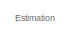
[diagram: root canvas - part 1/15, top center region]
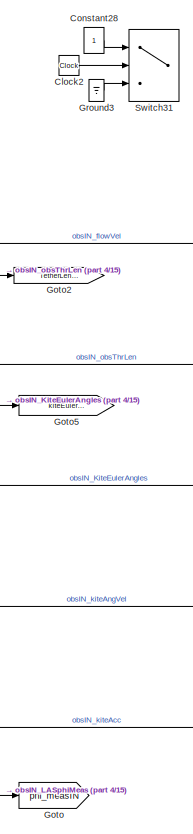
[diagram: root canvas - part 2/15, top right region]
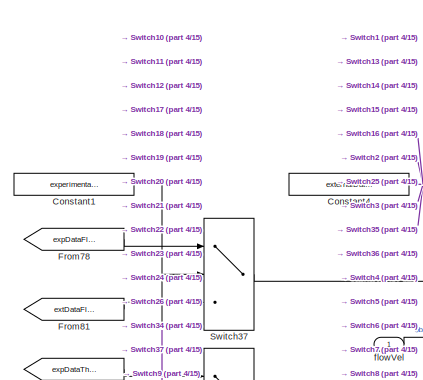
[diagram: root canvas - part 3/15, top right region]
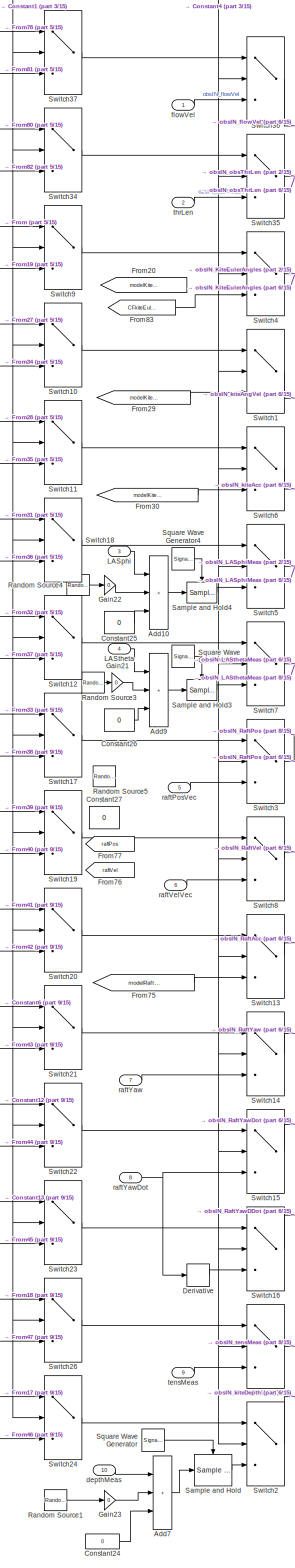
[diagram: root canvas - part 4/15, middle right region]
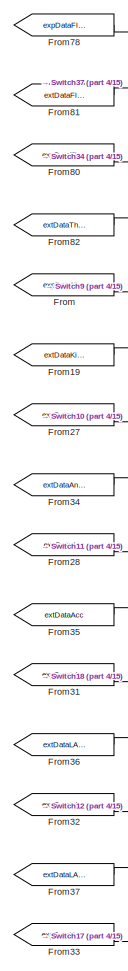
[diagram: root canvas - part 5/15, top right region]
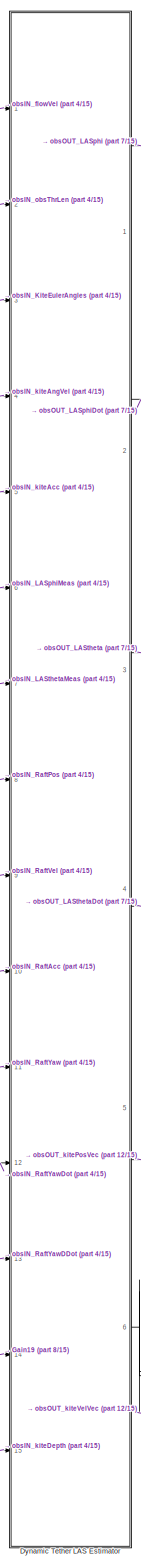
[diagram: root canvas - part 6/15, middle right region]
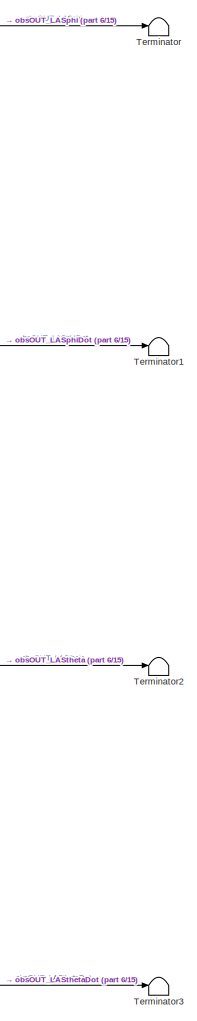
[diagram: root canvas - part 7/15, top right region]
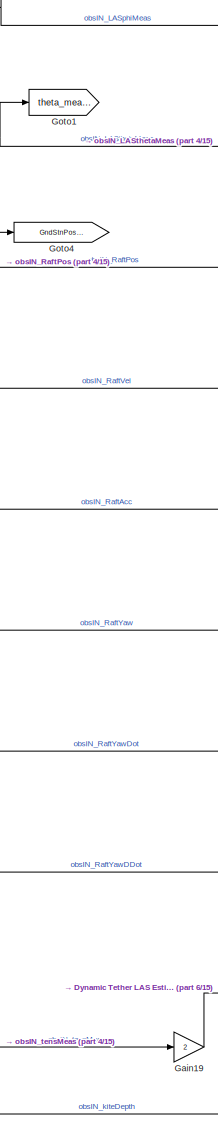
[diagram: root canvas - part 8/15, middle right region]
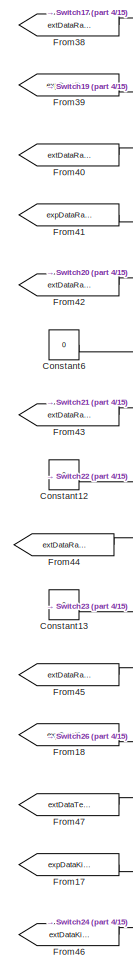
[diagram: root canvas - part 9/15, middle right region]
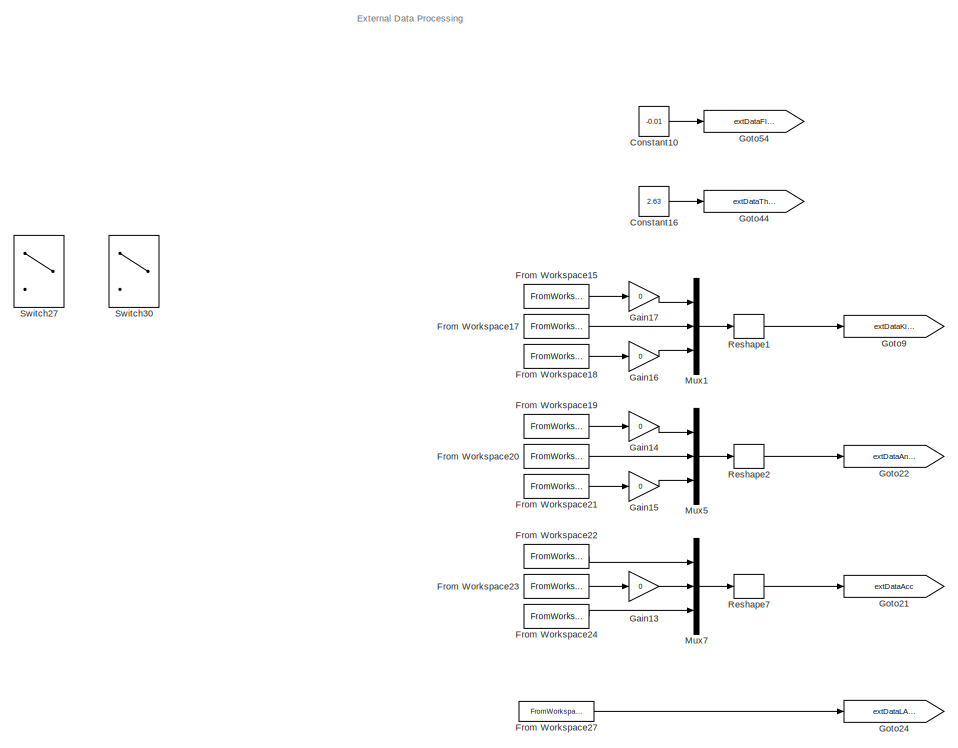
[diagram: root canvas - part 10/15, middle left region]
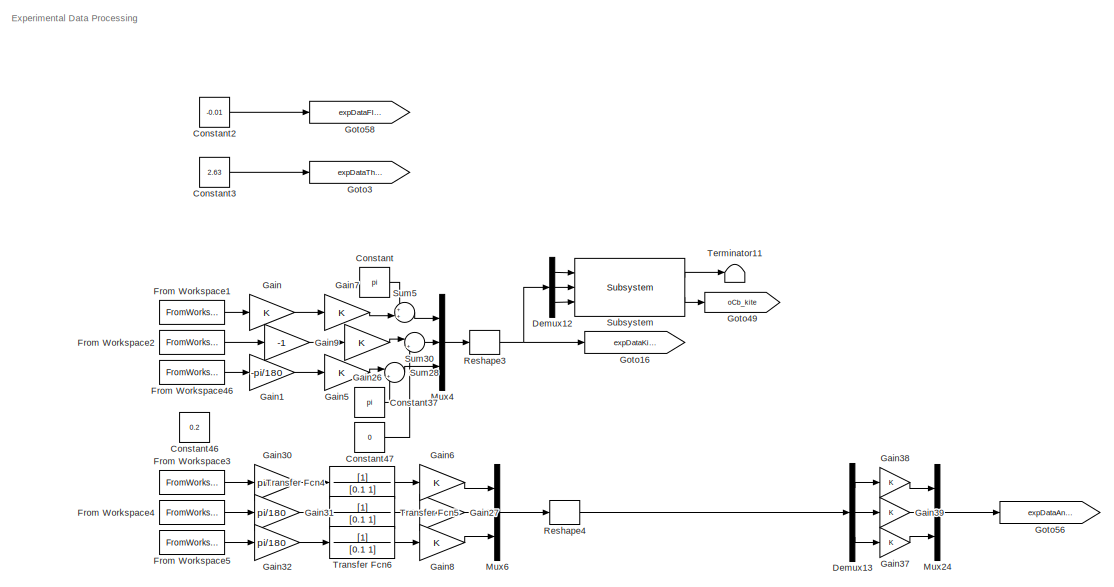
[diagram: root canvas - part 11/15, central region]
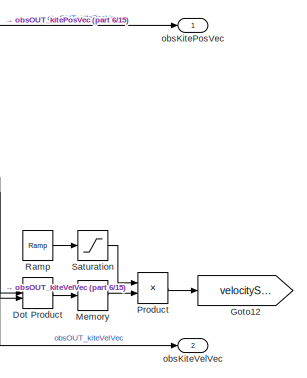
[diagram: root canvas - part 12/15, middle right region]
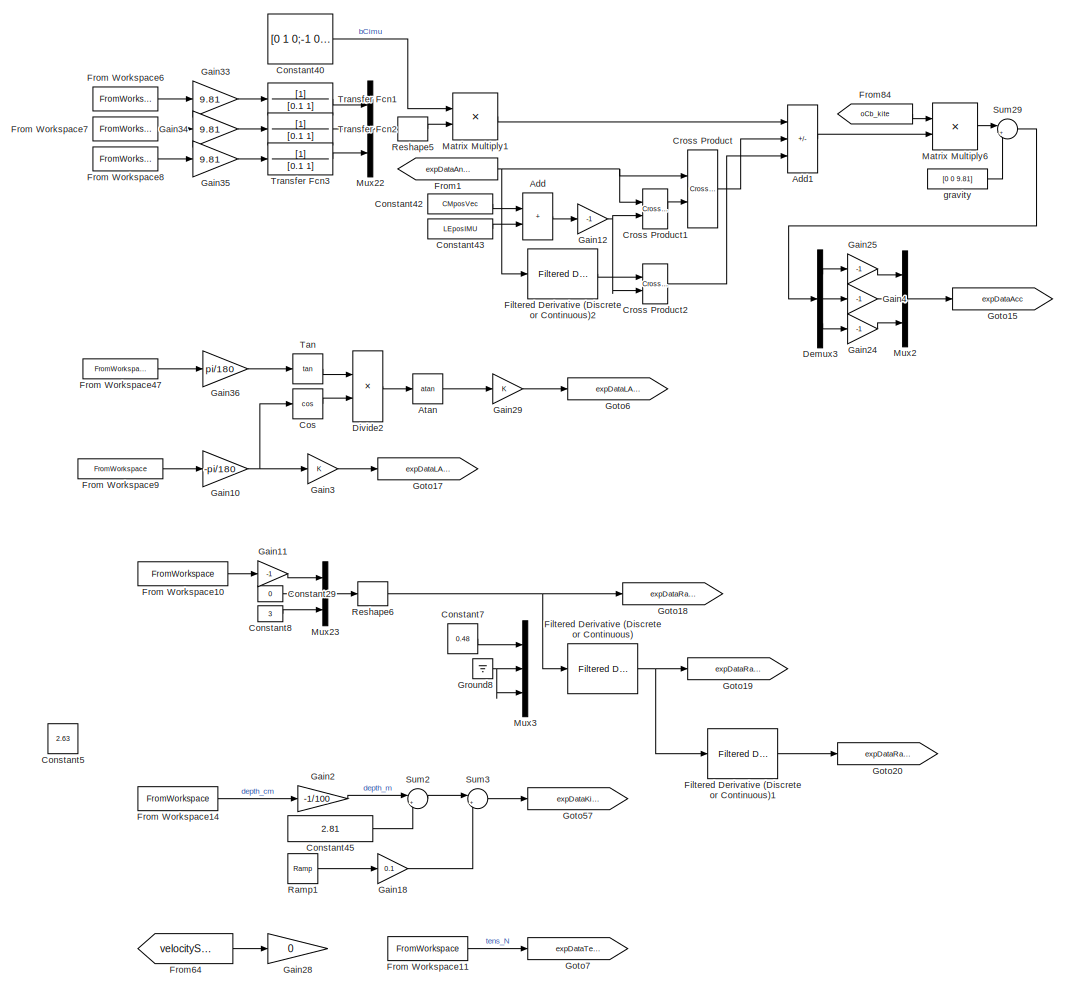
[diagram: root canvas - part 13/15, bottom center region]
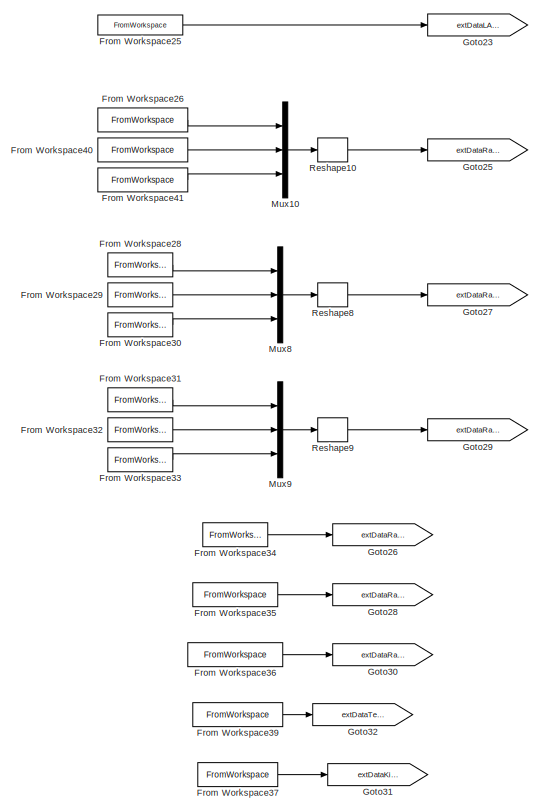
[diagram: root canvas - part 14/15, bottom left region]
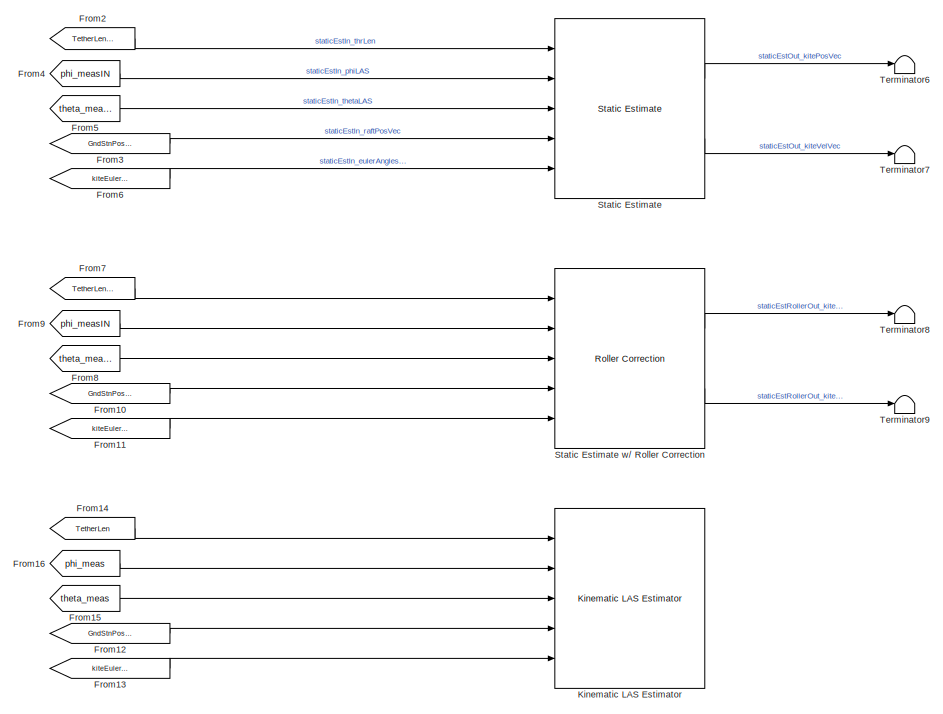
[diagram: root canvas - part 15/15, bottom right region]
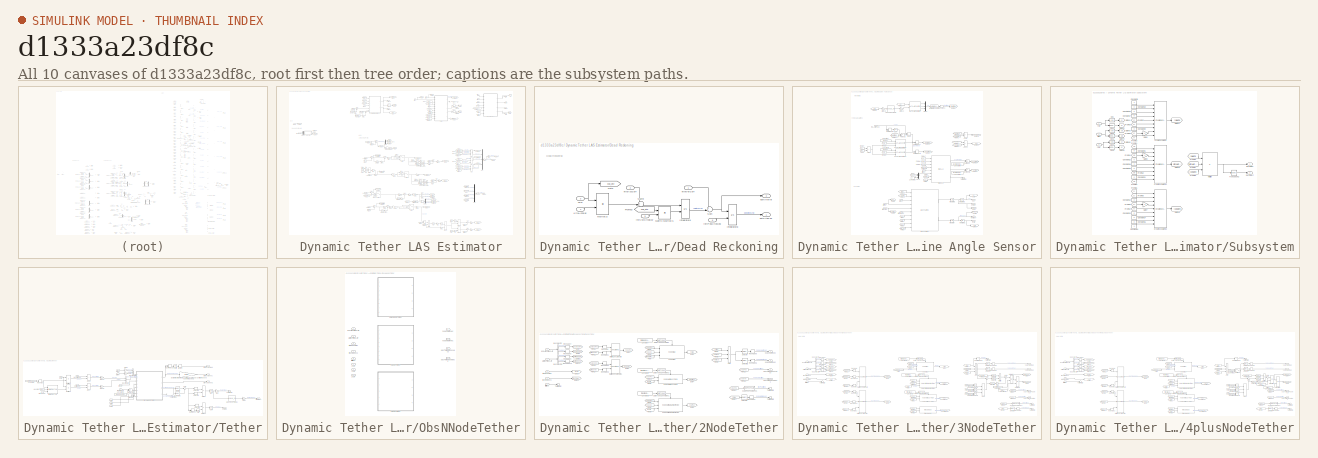
[diagram: thumbnail index - all 10 canvases of the model, root first then tree order]
MODEL slx_d1333a23df8c
KIND model
CONFIG AbsTol = auto
CONFIG EnableMultiTasking = off
CONFIG FixedStep = auto
CONFIG MaxStep = auto
CONFIG MinStep = auto
CONFIG RelTol = 1e-3
CONFIG SampleTimeConstraint = Unconstrained
CONFIG Solver = ode15s
CONFIG SolverName = ode15s
CONFIG StartTime = 0.0
CONFIG StopTime = duration_s
BLOCK [Sum] Add
  Commented = on
  IconShape = rectangular
  Ports = [2, 1]
BLOCK [Sum] Add1
  IconShape = rectangular
  Inputs = +--
  Ports = [3, 1]
BLOCK [Sum] Add10
  IconShape = rectangular
  Inputs = +++
  Ports = [3, 1]
BLOCK [Sum] Add7
  IconShape = rectangular
  Inputs = +++
  Ports = [3, 1]
BLOCK [Sum] Add9
  IconShape = rectangular
  Inputs = +++
  Ports = [3, 1]
BLOCK [Trigonometry] Atan
  Operator = atan
  Ports = [1, 1]
BLOCK [Clock] Clock2
BLOCK [Constant] Constant
  Value = pi
BLOCK [Constant] Constant1
  Value = experimentalDataIsInput
BLOCK [Constant] Constant10
  Value = -0.01
BLOCK [Constant] Constant12
  Value = 0
BLOCK [Constant] Constant13
  Value = 0
BLOCK [Constant] Constant16
  Value = 2.63
BLOCK [Constant] Constant2
  Value = -0.01
BLOCK [Constant] Constant24
  Value = 0
BLOCK [Constant] Constant25
  Value = 0
BLOCK [Constant] Constant26
  Value = 0
BLOCK [Constant] Constant27
  Value = 0
BLOCK [Constant] Constant28
BLOCK [Constant] Constant29
  Value = 0
BLOCK [Constant] Constant3
  Value = 2.63
BLOCK [Constant] Constant37
  Value = pi
BLOCK [Constant] Constant4
  Value = externalDataIsInput
BLOCK [Constant] Constant40
  Value = [0 1 0;-1 0 0; 0 0 1]
BLOCK [Constant] Constant42
  Commented = on
  Value = CMposVec
BLOCK [Constant] Constant43
  Commented = on
  Value = LEposIMU
BLOCK [Constant] Constant45
  Value = 2.81
BLOCK [Constant] Constant46
  Commented = on
  Value = 0.2
BLOCK [Constant] Constant47
  Value = 0
BLOCK [Constant] Constant5
  Commented = on
  Value = 2.63
BLOCK [Constant] Constant6
  Value = 0
BLOCK [Constant] Constant7
  Value = 0.48
BLOCK [Constant] Constant8
  Value = 3
BLOCK [Trigonometry] Cos
  Operator = cos
  Ports = [1, 1]
BLOCK [Reference] Cross Product  REF=vrlib/Utilities/Cross Product
  Commented = on
  Ports = [2, 1]
  SourceBlock = vrlib/Utilities/Cross Product
  SourceProductBaseCode = SL
  SourceType = Cross Product
BLOCK [Reference] Cross Product1  REF=vrlib/Utilities/Cross Product
  Commented = on
  Ports = [2, 1]
  SourceBlock = vrlib/Utilities/Cross Product
  SourceProductBaseCode = SL
  SourceType = Cross Product
BLOCK [Reference] Cross Product2  REF=vrlib/Utilities/Cross Product
  Commented = on
  NameLocation = right
  Ports = [2, 1]
  SourceBlock = vrlib/Utilities/Cross Product
  SourceProductBaseCode = SL
  SourceType = Cross Product
BLOCK [Demux] Demux12
  Outputs = 3
  Ports = [1, 3]
BLOCK [Demux] Demux13
  Outputs = 3
  Ports = [1, 3]
BLOCK [Demux] Demux3
  Outputs = 3
  Ports = [1, 3]
BLOCK [Derivative] Derivative
BLOCK [Product] Divide2
  Inputs = */
  Ports = [2, 1]
BLOCK [DotProduct] Dot Product
  OutDataTypeStr = Inherit: Inherit via internal rule
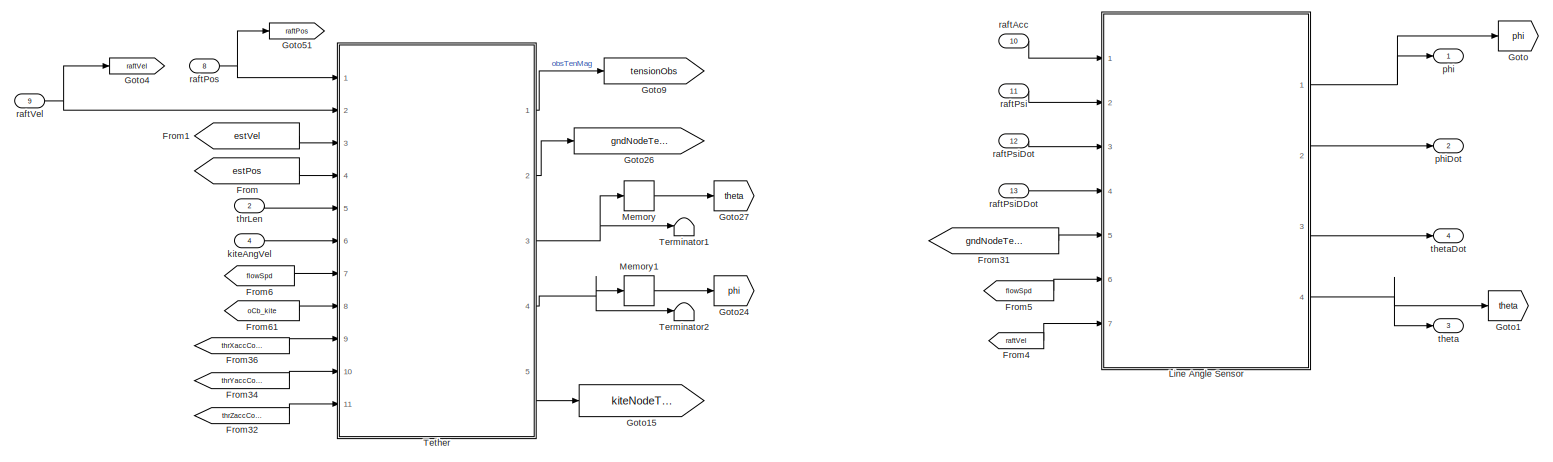
[diagram: Dynamic Tether LAS Estimator - part 1/7, top right region]
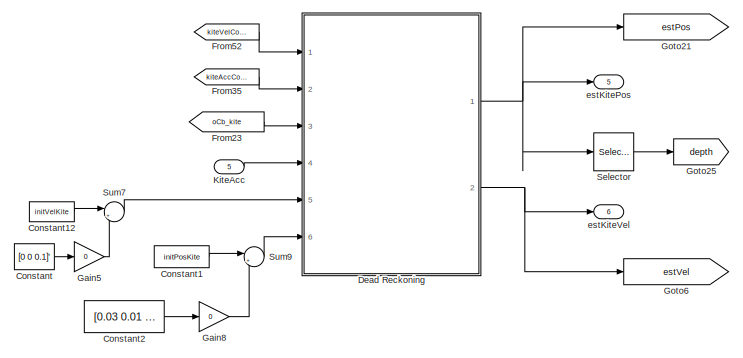
[diagram: Dynamic Tether LAS Estimator - part 2/7, top center region]
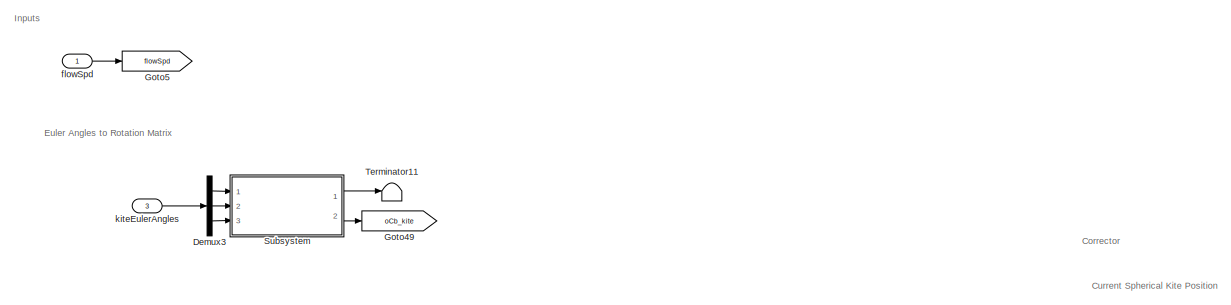
[diagram: Dynamic Tether LAS Estimator - part 3/7, top left region]
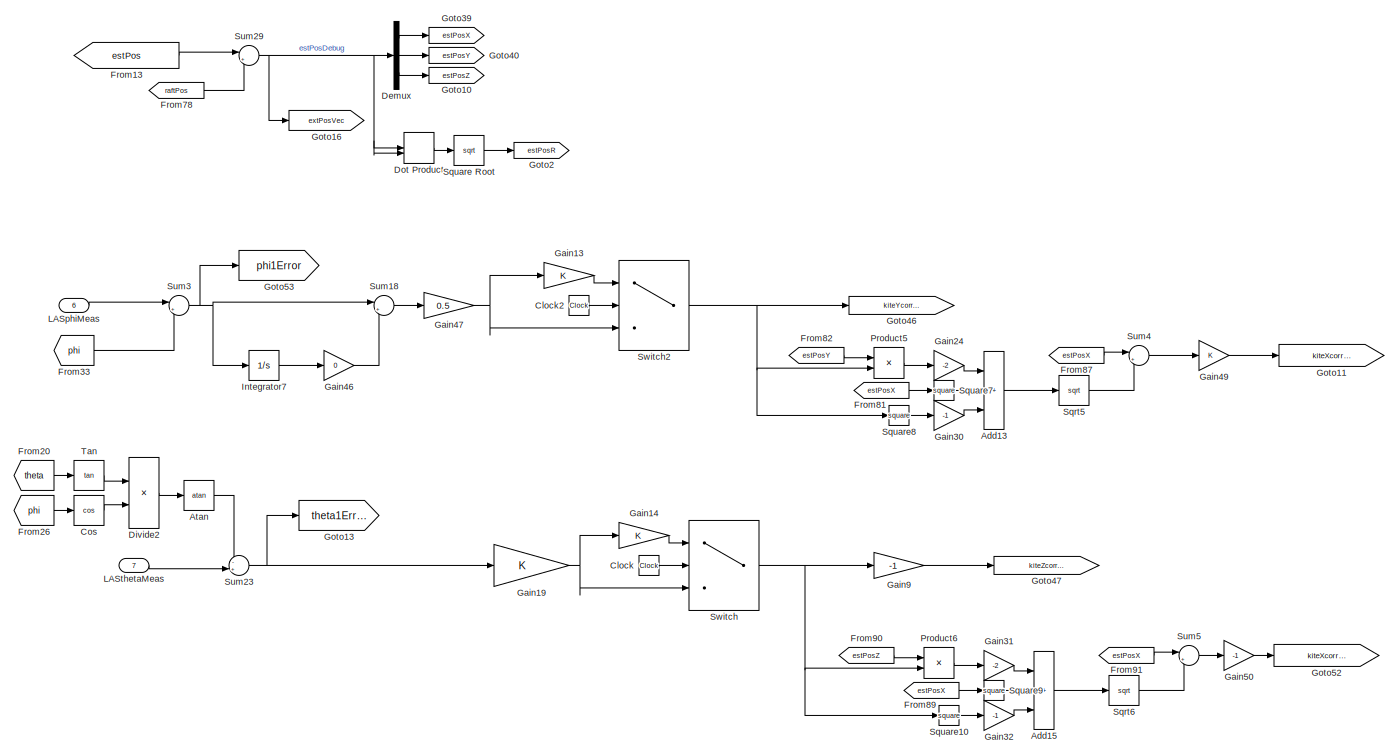
[diagram: Dynamic Tether LAS Estimator - part 4/7, central region]
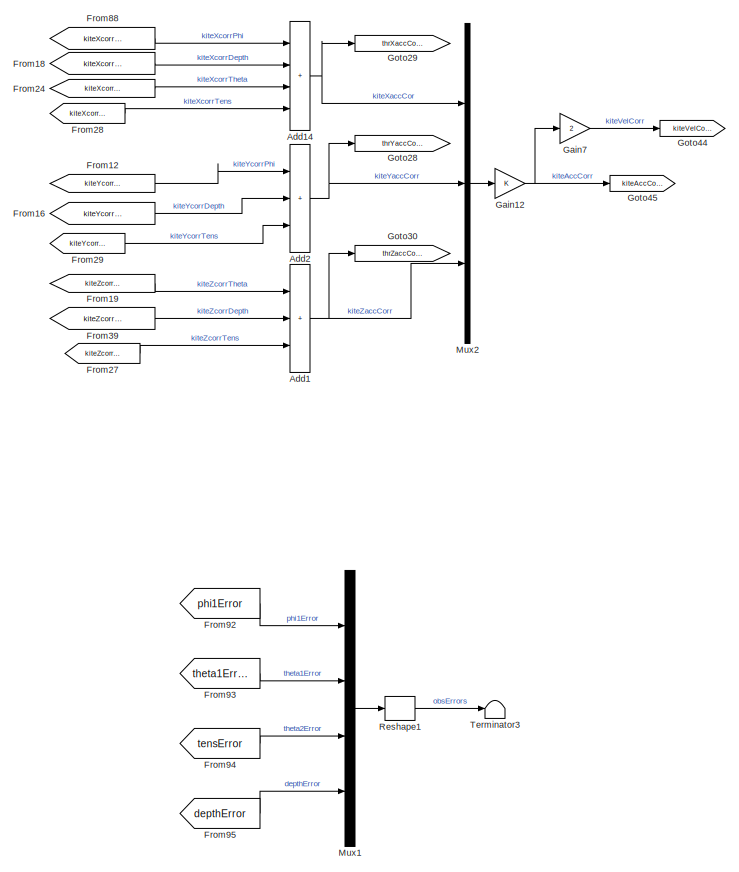
[diagram: Dynamic Tether LAS Estimator - part 5/7, middle right region]
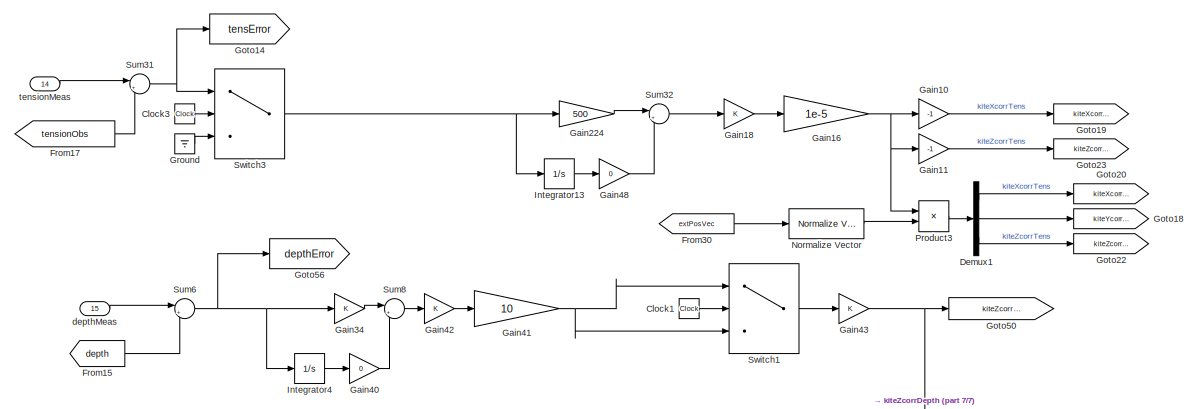
[diagram: Dynamic Tether LAS Estimator - part 6/7, bottom center region]
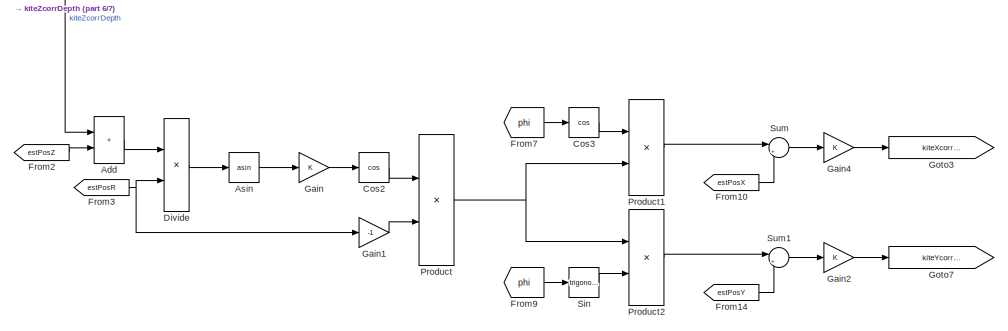
[diagram: Dynamic Tether LAS Estimator - part 7/7, bottom right region]
BLOCK [SubSystem] Dynamic Tether LAS Estimator
  AncestorBlock = lineAngleSensorObserver/lineAngleSensorObserver
  Ports = [15, 6]
  RequestExecContextInheritance = off
BLOCK [Sum] Dynamic Tether LAS Estimator/Add
  IconShape = rectangular
  Ports = [2, 1]
BLOCK [Sum] Dynamic Tether LAS Estimator/Add1
  IconShape = rectangular
  Inputs = 3
  Ports = [3, 1]
BLOCK [Sum] Dynamic Tether LAS Estimator/Add13
  IconShape = rectangular
  Inputs = 3
  Ports = [3, 1]
BLOCK [Sum] Dynamic Tether LAS Estimator/Add14
  IconShape = rectangular
  Inputs = 4
  Ports = [4, 1]
BLOCK [Sum] Dynamic Tether LAS Estimator/Add15
  IconShape = rectangular
  Inputs = 3
  Ports = [3, 1]
BLOCK [Sum] Dynamic Tether LAS Estimator/Add2
  IconShape = rectangular
  Inputs = 3
  Ports = [3, 1]
BLOCK [Trigonometry] Dynamic Tether LAS Estimator/Asin
  Operator = asin
  Ports = [1, 1]
BLOCK [Trigonometry] Dynamic Tether LAS Estimator/Atan
  Operator = atan
  Ports = [1, 1]
BLOCK [Clock] Dynamic Tether LAS Estimator/Clock
BLOCK [Clock] Dynamic Tether LAS Estimator/Clock1
BLOCK [Clock] Dynamic Tether LAS Estimator/Clock2
BLOCK [Clock] Dynamic Tether LAS Estimator/Clock3
BLOCK [Constant] Dynamic Tether LAS Estimator/Constant
  Value = [0 0 0.1]'
BLOCK [Constant] Dynamic Tether LAS Estimator/Constant1
  Value = initPosKite
BLOCK [Constant] Dynamic Tether LAS Estimator/Constant12
  Value = initVelKite
BLOCK [Constant] Dynamic Tether LAS Estimator/Constant2
  Value = [0.03 0.01 -0.02]'
BLOCK [Trigonometry] Dynamic Tether LAS Estimator/Cos
  Operator = cos
  Ports = [1, 1]
BLOCK [Trigonometry] Dynamic Tether LAS Estimator/Cos2
  Operator = cos
  Ports = [1, 1]
BLOCK [Trigonometry] Dynamic Tether LAS Estimator/Cos3
  Operator = cos
  Ports = [1, 1]
BLOCK [SubSystem] Dynamic Tether LAS Estimator/Dead Reckoning
  Ports = [6, 2]
  RequestExecContextInheritance = off
BLOCK [From] Dynamic Tether LAS Estimator/Dead Reckoning/From63
  GotoTag = oCb_kite
BLOCK [Goto] Dynamic Tether LAS Estimator/Dead Reckoning/Goto
  GotoTag = oCb_kite
BLOCK [Integrator] Dynamic Tether LAS Estimator/Dead Reckoning/Integrator6
  InitialConditionSource = external
  Ports = [2, 1]
BLOCK [Integrator] Dynamic Tether LAS Estimator/Dead Reckoning/Integrator8
  InitialConditionSource = external
  Ports = [2, 1]
BLOCK [Inport] Dynamic Tether LAS Estimator/Dead Reckoning/KiteAccBdy
  Port = 4
BLOCK [Product] Dynamic Tether LAS Estimator/Dead Reckoning/Matrix Multiply1
  Multiplication = Matrix(*)
  Ports = [2, 1]
BLOCK [Product] Dynamic Tether LAS Estimator/Dead Reckoning/Multiply2
  Multiplication = Matrix(*)
  Ports = [2, 1]
BLOCK [Sum] Dynamic Tether LAS Estimator/Dead Reckoning/Sum
  Inputs = ++|
  Ports = [2, 1]
BLOCK [Sum] Dynamic Tether LAS Estimator/Dead Reckoning/Sum9
  Inputs = ++|
  Ports = [2, 1]
BLOCK [Outport] Dynamic Tether LAS Estimator/Dead Reckoning/estKitePos
BLOCK [Outport] Dynamic Tether LAS Estimator/Dead Reckoning/estKiteVel
  Port = 2
BLOCK [Inport] Dynamic Tether LAS Estimator/Dead Reckoning/initPosKiteGnd
  Port = 6
BLOCK [Inport] Dynamic Tether LAS Estimator/Dead Reckoning/initVelKiteBdy
  Port = 5
BLOCK [Inport] Dynamic Tether LAS Estimator/Dead Reckoning/kiteAccCorr
  Port = 2
BLOCK [Inport] Dynamic Tether LAS Estimator/Dead Reckoning/kiteVelCorr
BLOCK [Inport] Dynamic Tether LAS Estimator/Dead Reckoning/oCb
  Port = 3
BLOCK [Demux] Dynamic Tether LAS Estimator/Demux
  Outputs = 3
  Ports = [1, 3]
BLOCK [Demux] Dynamic Tether LAS Estimator/Demux1
  Outputs = 3
  Ports = [1, 3]
BLOCK [Demux] Dynamic Tether LAS Estimator/Demux3
  Outputs = 3
  Ports = [1, 3]
BLOCK [Product] Dynamic Tether LAS Estimator/Divide
  Inputs = */
  Ports = [2, 1]
BLOCK [Product] Dynamic Tether LAS Estimator/Divide2
  Inputs = */
  Ports = [2, 1]
BLOCK [DotProduct] Dynamic Tether LAS Estimator/Dot Product
  OutDataTypeStr = Inherit: Inherit via internal rule
BLOCK [From] Dynamic Tether LAS Estimator/From
  GotoTag = estPos
BLOCK [From] Dynamic Tether LAS Estimator/From1
  GotoTag = estVel
BLOCK [From] Dynamic Tether LAS Estimator/From10
  GotoTag = estPosX
BLOCK [From] Dynamic Tether LAS Estimator/From12
  GotoTag = kiteYcorrPhi
BLOCK [From] Dynamic Tether LAS Estimator/From13
  GotoTag = estPos
BLOCK [From] Dynamic Tether LAS Estimator/From14
  GotoTag = estPosY
BLOCK [From] Dynamic Tether LAS Estimator/From15
  GotoTag = depth
BLOCK [From] Dynamic Tether LAS Estimator/From16
  GotoTag = kiteYcorrDepth
BLOCK [From] Dynamic Tether LAS Estimator/From17
  GotoTag = tensionObs
BLOCK [From] Dynamic Tether LAS Estimator/From18
  GotoTag = kiteXcorrDepth
BLOCK [From] Dynamic Tether LAS Estimator/From19
  GotoTag = kiteZcorrTheta
BLOCK [From] Dynamic Tether LAS Estimator/From2
  GotoTag = estPosZ
BLOCK [From] Dynamic Tether LAS Estimator/From20
  GotoTag = theta
BLOCK [From] Dynamic Tether LAS Estimator/From23
  GotoTag = oCb_kite
BLOCK [From] Dynamic Tether LAS Estimator/From24
  GotoTag = kiteXcorrTheta
BLOCK [From] Dynamic Tether LAS Estimator/From26
  GotoTag = phi
BLOCK [From] Dynamic Tether LAS Estimator/From27
  GotoTag = kiteZcorrTens
BLOCK [From] Dynamic Tether LAS Estimator/From28
  GotoTag = kiteXcorrTens
BLOCK [From] Dynamic Tether LAS Estimator/From29
  GotoTag = kiteYcorrTens
BLOCK [From] Dynamic Tether LAS Estimator/From3
  GotoTag = estPosR
BLOCK [From] Dynamic Tether LAS Estimator/From30
  GotoTag = extPosVec
BLOCK [From] Dynamic Tether LAS Estimator/From31
  GotoTag = gndNodeTenVecs
BLOCK [From] Dynamic Tether LAS Estimator/From32
  GotoTag = thrZaccCorr
BLOCK [From] Dynamic Tether LAS Estimator/From33
  GotoTag = phi
BLOCK [From] Dynamic Tether LAS Estimator/From34
  GotoTag = thrYaccCorr
BLOCK [From] Dynamic Tether LAS Estimator/From35
  GotoTag = kiteAccCorr
BLOCK [From] Dynamic Tether LAS Estimator/From36
  GotoTag = thrXaccCorr
BLOCK [From] Dynamic Tether LAS Estimator/From39
  GotoTag = kiteZcorrDepth
BLOCK [From] Dynamic Tether LAS Estimator/From4
  GotoTag = raftVel
BLOCK [From] Dynamic Tether LAS Estimator/From5
  GotoTag = flowSpd
BLOCK [From] Dynamic Tether LAS Estimator/From52
  GotoTag = kiteVelCorr
BLOCK [From] Dynamic Tether LAS Estimator/From6
  GotoTag = flowSpd
BLOCK [From] Dynamic Tether LAS Estimator/From61
  GotoTag = oCb_kite
BLOCK [From] Dynamic Tether LAS Estimator/From7
  GotoTag = phi
BLOCK [From] Dynamic Tether LAS Estimator/From78
  GotoTag = raftPos
BLOCK [From] Dynamic Tether LAS Estimator/From81
  GotoTag = estPosX
BLOCK [From] Dynamic Tether LAS Estimator/From82
  GotoTag = estPosY
BLOCK [From] Dynamic Tether LAS Estimator/From87
  GotoTag = estPosX
BLOCK [From] Dynamic Tether LAS Estimator/From88
  GotoTag = kiteXcorrPhi
BLOCK [From] Dynamic Tether LAS Estimator/From89
  GotoTag = estPosX
BLOCK [From] Dynamic Tether LAS Estimator/From9
  GotoTag = phi
BLOCK [From] Dynamic Tether LAS Estimator/From90
  GotoTag = estPosZ
BLOCK [From] Dynamic Tether LAS Estimator/From91
  GotoTag = estPosX
BLOCK [From] Dynamic Tether LAS Estimator/From92
  GotoTag = phi1Error
BLOCK [From] Dynamic Tether LAS Estimator/From93
  GotoTag = theta1Error
BLOCK [From] Dynamic Tether LAS Estimator/From94
  GotoTag = tensError
BLOCK [From] Dynamic Tether LAS Estimator/From95
  GotoTag = depthError
BLOCK [Gain] Dynamic Tether LAS Estimator/Gain
BLOCK [Gain] Dynamic Tether LAS Estimator/Gain1
  Gain = -1
BLOCK [Gain] Dynamic Tether LAS Estimator/Gain10
  Commented = on
  Gain = -1
BLOCK [Gain] Dynamic Tether LAS Estimator/Gain11
  Commented = on
  Gain = -1
BLOCK [Gain] Dynamic Tether LAS Estimator/Gain12
BLOCK [Gain] Dynamic Tether LAS Estimator/Gain13
BLOCK [Gain] Dynamic Tether LAS Estimator/Gain14
BLOCK [Gain] Dynamic Tether LAS Estimator/Gain16
  Gain = 1e-5
BLOCK [Gain] Dynamic Tether LAS Estimator/Gain18
BLOCK [Gain] Dynamic Tether LAS Estimator/Gain19
BLOCK [Gain] Dynamic Tether LAS Estimator/Gain2
BLOCK [Gain] Dynamic Tether LAS Estimator/Gain224
  Gain = 500
BLOCK [Gain] Dynamic Tether LAS Estimator/Gain24
  Gain = -2
BLOCK [Gain] Dynamic Tether LAS Estimator/Gain30
  Gain = -1
BLOCK [Gain] Dynamic Tether LAS Estimator/Gain31
  Gain = -2
BLOCK [Gain] Dynamic Tether LAS Estimator/Gain32
  Gain = -1
BLOCK [Gain] Dynamic Tether LAS Estimator/Gain34
BLOCK [Gain] Dynamic Tether LAS Estimator/Gain4
BLOCK [Gain] Dynamic Tether LAS Estimator/Gain40
  Gain = 0
BLOCK [Gain] Dynamic Tether LAS Estimator/Gain41
  Gain = 10
BLOCK [Gain] Dynamic Tether LAS Estimator/Gain42
BLOCK [Gain] Dynamic Tether LAS Estimator/Gain43
BLOCK [Gain] Dynamic Tether LAS Estimator/Gain46
  Gain = 0
BLOCK [Gain] Dynamic Tether LAS Estimator/Gain47
  Gain = 0.5
BLOCK [Gain] Dynamic Tether LAS Estimator/Gain48
  Gain = 0
BLOCK [Gain] Dynamic Tether LAS Estimator/Gain49
BLOCK [Gain] Dynamic Tether LAS Estimator/Gain5
  Gain = 0
BLOCK [Gain] Dynamic Tether LAS Estimator/Gain50
  Gain = -1
BLOCK [Gain] Dynamic Tether LAS Estimator/Gain7
  Gain = 2
BLOCK [Gain] Dynamic Tether LAS Estimator/Gain8
  Gain = 0
BLOCK [Gain] Dynamic Tether LAS Estimator/Gain9
  Gain = -1
BLOCK [Goto] Dynamic Tether LAS Estimator/Goto
  GotoTag = phi
BLOCK [Goto] Dynamic Tether LAS Estimator/Goto1
  GotoTag = theta
BLOCK [Goto] Dynamic Tether LAS Estimator/Goto10
  GotoTag = estPosZ
BLOCK [Goto] Dynamic Tether LAS Estimator/Goto11
  GotoTag = kiteXcorrPhi
BLOCK [Goto] Dynamic Tether LAS Estimator/Goto13
  GotoTag = theta1Error
BLOCK [Goto] Dynamic Tether LAS Estimator/Goto14
  GotoTag = tensError
BLOCK [Goto] Dynamic Tether LAS Estimator/Goto15
  GotoTag = kiteNodeTenVec
BLOCK [Goto] Dynamic Tether LAS Estimator/Goto16
  GotoTag = extPosVec
BLOCK [Goto] Dynamic Tether LAS Estimator/Goto18
  GotoTag = kiteYcorrTens
BLOCK [Goto] Dynamic Tether LAS Estimator/Goto19
  Commented = on
  GotoTag = kiteXcorrTens
BLOCK [Goto] Dynamic Tether LAS Estimator/Goto2
  GotoTag = estPosR
BLOCK [Goto] Dynamic Tether LAS Estimator/Goto20
  GotoTag = kiteXcorrTens
BLOCK [Goto] Dynamic Tether LAS Estimator/Goto21
  GotoTag = estPos
BLOCK [Goto] Dynamic Tether LAS Estimator/Goto22
  GotoTag = kiteZcorrTens
BLOCK [Goto] Dynamic Tether LAS Estimator/Goto23
  Commented = on
  GotoTag = kiteZcorrTens
BLOCK [Goto] Dynamic Tether LAS Estimator/Goto24
  Commented = on
  GotoTag = phi
BLOCK [Goto] Dynamic Tether LAS Estimator/Goto25
  GotoTag = depth
BLOCK [Goto] Dynamic Tether LAS Estimator/Goto26
  GotoTag = gndNodeTenVecs
BLOCK [Goto] Dynamic Tether LAS Estimator/Goto27
  Commented = on
  GotoTag = theta
BLOCK [Goto] Dynamic Tether LAS Estimator/Goto28
  GotoTag = thrYaccCorr
BLOCK [Goto] Dynamic Tether LAS Estimator/Goto29
  GotoTag = thrXaccCorr
BLOCK [Goto] Dynamic Tether LAS Estimator/Goto3
  GotoTag = kiteXcorrDepth
BLOCK [Goto] Dynamic Tether LAS Estimator/Goto30
  GotoTag = thrZaccCorr
BLOCK [Goto] Dynamic Tether LAS Estimator/Goto39
  GotoTag = estPosX
BLOCK [Goto] Dynamic Tether LAS Estimator/Goto4
  GotoTag = raftVel
BLOCK [Goto] Dynamic Tether LAS Estimator/Goto40
  GotoTag = estPosY
BLOCK [Goto] Dynamic Tether LAS Estimator/Goto44
  GotoTag = kiteVelCorr
BLOCK [Goto] Dynamic Tether LAS Estimator/Goto45
  GotoTag = kiteAccCorr
BLOCK [Goto] Dynamic Tether LAS Estimator/Goto46
  GotoTag = kiteYcorrPhi
BLOCK [Goto] Dynamic Tether LAS Estimator/Goto47
  GotoTag = kiteZcorrTheta
BLOCK [Goto] Dynamic Tether LAS Estimator/Goto49
  GotoTag = oCb_kite
BLOCK [Goto] Dynamic Tether LAS Estimator/Goto5
  GotoTag = flowSpd
BLOCK [Goto] Dynamic Tether LAS Estimator/Goto50
  GotoTag = kiteZcorrDepth
BLOCK [Goto] Dynamic Tether LAS Estimator/Goto51
  GotoTag = raftPos
BLOCK [Goto] Dynamic Tether LAS Estimator/Goto52
  GotoTag = kiteXcorrTheta
BLOCK [Goto] Dynamic Tether LAS Estimator/Goto53
  GotoTag = phi1Error
BLOCK [Goto] Dynamic Tether LAS Estimator/Goto56
  GotoTag = depthError
BLOCK [Goto] Dynamic Tether LAS Estimator/Goto6
  GotoTag = estVel
BLOCK [Goto] Dynamic Tether LAS Estimator/Goto7
  GotoTag = kiteYcorrDepth
BLOCK [Goto] Dynamic Tether LAS Estimator/Goto9
  GotoTag = tensionObs
BLOCK [Ground] Dynamic Tether LAS Estimator/Ground
BLOCK [Integrator] Dynamic Tether LAS Estimator/Integrator13
  Ports = [1, 1]
BLOCK [Integrator] Dynamic Tether LAS Estimator/Integrator4
  Ports = [1, 1]
BLOCK [Integrator] Dynamic Tether LAS Estimator/Integrator7
  Ports = [1, 1]
BLOCK [Inport] Dynamic Tether LAS Estimator/KiteAcc
  Port = 5
BLOCK [Inport] Dynamic Tether LAS Estimator/LASphiMeas
  Port = 6
BLOCK [Inport] Dynamic Tether LAS Estimator/LASthetaMeas
  Port = 7
BLOCK [SubSystem] Dynamic Tether LAS Estimator/Line Angle Sensor
  Ports = [7, 4]
  RequestExecContextInheritance = off
BLOCK [Lookup_n-D] Dynamic Tether LAS Estimator/Line Angle Sensor/1-D Lookup Table
  BreakpointsForDimension1 = las.thrAngLookup.Value(2,:)
  InternalRulePriority = Speed
  NumberOfTableDimensions = 1
  Ports = [1, 1]
  RndMeth = Simplest
  Table = las.thrAngLookup.Value(1,:)
BLOCK [Sum] Dynamic Tether LAS Estimator/Line Angle Sensor/Add10
  IconShape = rectangular
  Ports = [2, 1]
BLOCK [Sum] Dynamic Tether LAS Estimator/Line Angle Sensor/Add3
  IconShape = rectangular
  Ports = [2, 1]
BLOCK [Sum] Dynamic Tether LAS Estimator/Line Angle Sensor/Add4
  IconShape = rectangular
  Ports = [2, 1]
BLOCK [Sum] Dynamic Tether LAS Estimator/Line Angle Sensor/Add9
  IconShape = rectangular
  Ports = [2, 1]
BLOCK [Constant] Dynamic Tether LAS Estimator/Line Angle Sensor/Constant
  Value = [-las.length.Value 0 0]
BLOCK [Constant] Dynamic Tether LAS Estimator/Line Angle Sensor/Constant3
  Value = 0
BLOCK [Constant] Dynamic Tether LAS Estimator/Line Angle Sensor/Constant4
  Value = [-las.length.Value 0 0]
BLOCK [Constant] Dynamic Tether LAS Estimator/Line Angle Sensor/Constant5
  Value = las.dragEnable.Value
BLOCK [Constant] Dynamic Tether LAS Estimator/Line Angle Sensor/Constant6
  Value = las.dragEnable.Value
BLOCK [DotProduct] Dynamic Tether LAS Estimator/Line Angle Sensor/Dot Product
  OutDataTypeStr = Inherit: Inherit via internal rule
BLOCK [DotProduct] Dynamic Tether LAS Estimator/Line Angle Sensor/Dot Product1
  OutDataTypeStr = Inherit: Inherit via internal rule
BLOCK [DotProduct] Dynamic Tether LAS Estimator/Line Angle Sensor/Dot Product3
  OutDataTypeStr = Inherit: Inherit via internal rule
BLOCK [From] Dynamic Tether LAS Estimator/Line Angle Sensor/From
  GotoTag = phi
BLOCK [From] Dynamic Tether LAS Estimator/Line Angle Sensor/From1
  GotoTag = theta
BLOCK [From] Dynamic Tether LAS Estimator/Line Angle Sensor/From10
  GotoTag = theta_dot
BLOCK [From] Dynamic Tether LAS Estimator/Line Angle Sensor/From16
  GotoTag = theta
BLOCK [From] Dynamic Tether LAS Estimator/Line Angle Sensor/From2
  GotoTag = phi_dot
BLOCK [From] Dynamic Tether LAS Estimator/Line Angle Sensor/From20
  GotoTag = qThetaTether
BLOCK [From] Dynamic Tether LAS Estimator/Line Angle Sensor/From22
  GotoTag = theta
BLOCK [From] Dynamic Tether LAS Estimator/Line Angle Sensor/From27
  GotoTag = phi
BLOCK [From] Dynamic Tether LAS Estimator/Line Angle Sensor/From29
  GotoTag = qTheta
BLOCK [From] Dynamic Tether LAS Estimator/Line Angle Sensor/From3
  GotoTag = theta_dot
BLOCK [From] Dynamic Tether LAS Estimator/Line Angle Sensor/From30
  GotoTag = qPhi
BLOCK [From] Dynamic Tether LAS Estimator/Line Angle Sensor/From32
  GotoTag = qPhiTether
BLOCK [From] Dynamic Tether LAS Estimator/Line Angle Sensor/From36
  GotoTag = theta
BLOCK [From] Dynamic Tether LAS Estimator/Line Angle Sensor/From37
  GotoTag = phi
BLOCK [From] Dynamic Tether LAS Estimator/Line Angle Sensor/From4
  GotoTag = psi
BLOCK [From] Dynamic Tether LAS Estimator/Line Angle Sensor/From40
  GotoTag = qPhiDrag
BLOCK [From] Dynamic Tether LAS Estimator/Line Angle Sensor/From41
  GotoTag = qThetaDrag
BLOCK [From] Dynamic Tether LAS Estimator/Line Angle Sensor/From42
  GotoTag = t2UnitVec
BLOCK [From] Dynamic Tether LAS Estimator/Line Angle Sensor/From47
  GotoTag = phi
BLOCK [From] Dynamic Tether LAS Estimator/Line Angle Sensor/From48
  GotoTag = theta
BLOCK [From] Dynamic Tether LAS Estimator/Line Angle Sensor/From49
  GotoTag = phi_dot
BLOCK [From] Dynamic Tether LAS Estimator/Line Angle Sensor/From5
  GotoTag = psi
BLOCK [From] Dynamic Tether LAS Estimator/Line Angle Sensor/From6
  GotoTag = psiDot
BLOCK [Gain] Dynamic Tether LAS Estimator/Line Angle Sensor/Gain12
  Gain = -1
  NameLocation = top
BLOCK [Gain] Dynamic Tether LAS Estimator/Line Angle Sensor/Gain13
  Gain = -1
BLOCK [Goto] Dynamic Tether LAS Estimator/Line Angle Sensor/Goto
  GotoTag = phi
BLOCK [Goto] Dynamic Tether LAS Estimator/Line Angle Sensor/Goto1
  GotoTag = theta
BLOCK [Goto] Dynamic Tether LAS Estimator/Line Angle Sensor/Goto11
  GotoTag = qThetaDrag
BLOCK [Goto] Dynamic Tether LAS Estimator/Line Angle Sensor/Goto12
  GotoTag = qPhiDrag
BLOCK [Goto] Dynamic Tether LAS Estimator/Line Angle Sensor/Goto13
  GotoTag = qPhiTether
BLOCK [Goto] Dynamic Tether LAS Estimator/Line Angle Sensor/Goto14
  GotoTag = qThetaTether
BLOCK [Goto] Dynamic Tether LAS Estimator/Line Angle Sensor/Goto2
  GotoTag = phi_dot
BLOCK [Goto] Dynamic Tether LAS Estimator/Line Angle Sensor/Goto29
  GotoTag = qTheta
BLOCK [Goto] Dynamic Tether LAS Estimator/Line Angle Sensor/Goto3
  GotoTag = theta_dot
BLOCK [Goto] Dynamic Tether LAS Estimator/Line Angle Sensor/Goto30
  GotoTag = qPhi
BLOCK [Goto] Dynamic Tether LAS Estimator/Line Angle Sensor/Goto4
  GotoTag = psiDot
BLOCK [Goto] Dynamic Tether LAS Estimator/Line Angle Sensor/Goto41
  GotoTag = t2UnitVec
BLOCK [Goto] Dynamic Tether LAS Estimator/Line Angle Sensor/Goto5
  GotoTag = psi
BLOCK [Integrator] Dynamic Tether LAS Estimator/Line Angle Sensor/Integrator
  InitialCondition = obsLASthetadotInit
  Ports = [1, 1]
BLOCK [Integrator] Dynamic Tether LAS Estimator/Line Angle Sensor/Integrator1
  InitialCondition = obsLASthetaInit
  Ports = [1, 1]
BLOCK [Integrator] Dynamic Tether LAS Estimator/Line Angle Sensor/Integrator2
  InitialCondition = obsLASphiInit
  Ports = [1, 1]
BLOCK [Integrator] Dynamic Tether LAS Estimator/Line Angle Sensor/Integrator3
  InitialCondition = obsLASphidotInit
  Ports = [1, 1]
BLOCK [Reference] Dynamic Tether LAS Estimator/Line Angle Sensor/MATLAB Function  REF=lineAngleSensor/lineAngleSensor/MATLAB Function
  Ports = [2, 3]
  SourceBlock = lineAngleSensor/lineAngleSensor/MATLAB Function
  SourceType = SubSystem
BLOCK [Reference] Dynamic Tether LAS Estimator/Line Angle Sensor/MATLAB Function1  REF=lineAngleSensor/lineAngleSensor/MATLAB Function1
  Ports = [3, 1]
  SourceBlock = lineAngleSensor/lineAngleSensor/MATLAB Function1
  SourceType = SubSystem
BLOCK [Reference] Dynamic Tether LAS Estimator/Line Angle Sensor/MATLAB Function5  REF=lineAngleSensor/lineAngleSensor/MATLAB Function5
  Ports = [3, 1]
  SourceBlock = lineAngleSensor/lineAngleSensor/MATLAB Function5
  SourceType = SubSystem
BLOCK [Mux] Dynamic Tether LAS Estimator/Line Angle Sensor/Mux3
  DisplayOption = bar
  Inputs = 3
  Ports = [3, 1]
BLOCK [Mux] Dynamic Tether LAS Estimator/Line Angle Sensor/Mux5
  DisplayOption = bar
  Inputs = 3
  Ports = [3, 1]
BLOCK [Reference] Dynamic Tether LAS Estimator/Line Angle Sensor/Normalize Vector4  REF=vrlib/Utilities/Normalize Vector
  Ports = [1, 1]
  SourceBlock = vrlib/Utilities/Normalize Vector
  SourceProductBaseCode = SL
  SourceType = Normalize Vector
BLOCK [Product] Dynamic Tether LAS Estimator/Line Angle Sensor/Product
  Ports = [2, 1]
BLOCK [Product] Dynamic Tether LAS Estimator/Line Angle Sensor/Product1
  Ports = [2, 1]
BLOCK [Product] Dynamic Tether LAS Estimator/Line Angle Sensor/Product2
  Ports = [2, 1]
BLOCK [Reshape] Dynamic Tether LAS Estimator/Line Angle Sensor/Reshape3
  OutputDimensionality = Column vector (2-D)
  Ports = [1, 1]
BLOCK [Sqrt] Dynamic Tether LAS Estimator/Line Angle Sensor/Sqrt
BLOCK [Terminator] Dynamic Tether LAS Estimator/Line Angle Sensor/Terminator
BLOCK [Reference] Dynamic Tether LAS Estimator/Line Angle Sensor/dragLAS  REF=lineAngleSensor/lineAngleSensor/dragLAS
  Ports = [8, 3]
  SourceBlock = lineAngleSensor/lineAngleSensor/dragLAS
BLOCK [Inport] Dynamic Tether LAS Estimator/Line Angle Sensor/flowSpd
  Port = 6
BLOCK [Reference] Dynamic Tether LAS Estimator/Line Angle Sensor/lasDynamics  REF=lineAngleSensor/lineAngleSensor/lasDynamics
  Ports = [10, 2]
  SourceBlock = lineAngleSensor/lineAngleSensor/lasDynamics
BLOCK [Outport] Dynamic Tether LAS Estimator/Line Angle Sensor/phi
BLOCK [Outport] Dynamic Tether LAS Estimator/Line Angle Sensor/phiDot
  Port = 2
BLOCK [Inport] Dynamic Tether LAS Estimator/Line Angle Sensor/raftAcc
BLOCK [Inport] Dynamic Tether LAS Estimator/Line Angle Sensor/raftPsi
  Port = 2
BLOCK [Inport] Dynamic Tether LAS Estimator/Line Angle Sensor/raftPsiDDot
  Port = 4
BLOCK [Inport] Dynamic Tether LAS Estimator/Line Angle Sensor/raftPsiDot
  Port = 3
BLOCK [Inport] Dynamic Tether LAS Estimator/Line Angle Sensor/raftVel
  Port = 7
BLOCK [Outport] Dynamic Tether LAS Estimator/Line Angle Sensor/theta
  Port = 4
BLOCK [Outport] Dynamic Tether LAS Estimator/Line Angle Sensor/thetaDot
  Port = 3
BLOCK [Inport] Dynamic Tether LAS Estimator/Line Angle Sensor/thrLAStenVec
  Port = 5
BLOCK [Memory] Dynamic Tether LAS Estimator/Memory
  Commented = on
BLOCK [Memory] Dynamic Tether LAS Estimator/Memory1
  Commented = on
BLOCK [Mux] Dynamic Tether LAS Estimator/Mux1
  DisplayOption = bar
  Ports = [4, 1]
BLOCK [Mux] Dynamic Tether LAS Estimator/Mux2
  DisplayOption = bar
  Inputs = 3
  Ports = [3, 1]
BLOCK [Reference] Dynamic Tether LAS Estimator/Normalize Vector  REF=vrlib/Utilities/Normalize Vector
  Ports = [1, 1]
  SourceBlock = vrlib/Utilities/Normalize Vector
  SourceProductBaseCode = SL
  SourceType = Normalize Vector
BLOCK [Product] Dynamic Tether LAS Estimator/Product
  Ports = [2, 1]
BLOCK [Product] Dynamic Tether LAS Estimator/Product1
  Ports = [2, 1]
BLOCK [Product] Dynamic Tether LAS Estimator/Product2
  Ports = [2, 1]
BLOCK [Product] Dynamic Tether LAS Estimator/Product3
  Ports = [2, 1]
BLOCK [Product] Dynamic Tether LAS Estimator/Product5
  Ports = [2, 1]
BLOCK [Product] Dynamic Tether LAS Estimator/Product6
  Ports = [2, 1]
BLOCK [Reshape] Dynamic Tether LAS Estimator/Reshape1
  OutputDimensionality = Column vector (2-D)
  Ports = [1, 1]
BLOCK [Selector] Dynamic Tether LAS Estimator/Selector
  IndexOptions = Index vector (dialog)
  Indices = [3]
  InputPortWidth = 3
  OutputSizes = 1
  Ports = [1, 1]
BLOCK [Trigonometry] Dynamic Tether LAS Estimator/Sin
  Ports = [1, 1]
BLOCK [Sqrt] Dynamic Tether LAS Estimator/Sqrt5
BLOCK [Sqrt] Dynamic Tether LAS Estimator/Sqrt6
BLOCK [Sqrt] Dynamic Tether LAS Estimator/Square Root
BLOCK [Math] Dynamic Tether LAS Estimator/Square10
  Operator = square
  Ports = [1, 1]
BLOCK [Math] Dynamic Tether LAS Estimator/Square7
  Operator = square
  Ports = [1, 1]
BLOCK [Math] Dynamic Tether LAS Estimator/Square8
  Operator = square
  Ports = [1, 1]
BLOCK [Math] Dynamic Tether LAS Estimator/Square9
  Operator = square
  Ports = [1, 1]
BLOCK [SubSystem] Dynamic Tether LAS Estimator/Subsystem
  Ports = [3, 2]
  RequestExecContextInheritance = off
BLOCK [Constant] Dynamic Tether LAS Estimator/Subsystem/Constant10
  Value = 0
BLOCK [Constant] Dynamic Tether LAS Estimator/Subsystem/Constant11
  Value = 0
BLOCK [Constant] Dynamic Tether LAS Estimator/Subsystem/Constant12
  Value = 0
BLOCK [Constant] Dynamic Tether LAS Estimator/Subsystem/Constant13
  Value = 0
BLOCK [Constant] Dynamic Tether LAS Estimator/Subsystem/Constant14
  Value = 0
BLOCK [Constant] Dynamic Tether LAS Estimator/Subsystem/Constant15
  Value = 0
BLOCK [Constant] Dynamic Tether LAS Estimator/Subsystem/Constant16
  Value = 0
BLOCK [Constant] Dynamic Tether LAS Estimator/Subsystem/Constant17
  Value = 0
BLOCK [Constant] Dynamic Tether LAS Estimator/Subsystem/Constant18
BLOCK [Constant] Dynamic Tether LAS Estimator/Subsystem/Constant19
BLOCK [Constant] Dynamic Tether LAS Estimator/Subsystem/Constant20
  Value = 0
BLOCK [Constant] Dynamic Tether LAS Estimator/Subsystem/Constant21
  Value = 0
BLOCK [Constant] Dynamic Tether LAS Estimator/Subsystem/Constant22
  Value = 0
BLOCK [Constant] Dynamic Tether LAS Estimator/Subsystem/Constant23
  Value = 0
BLOCK [Constant] Dynamic Tether LAS Estimator/Subsystem/Constant9
BLOCK [Trigonometry] Dynamic Tether LAS Estimator/Subsystem/Cos
  Operator = cos
  Ports = [1, 1]
BLOCK [Trigonometry] Dynamic Tether LAS Estimator/Subsystem/Cos1
  Ports = [1, 1]
BLOCK [Trigonometry] Dynamic Tether LAS Estimator/Subsystem/Cos2
  Operator = cos
  Ports = [1, 1]
BLOCK [Trigonometry] Dynamic Tether LAS Estimator/Subsystem/Cos3
  Ports = [1, 1]
BLOCK [Trigonometry] Dynamic Tether LAS Estimator/Subsystem/Cos4
  Operator = cos
  Ports = [1, 1]
BLOCK [Trigonometry] Dynamic Tether LAS Estimator/Subsystem/Cos5
  Ports = [1, 1]
BLOCK [Reference] Dynamic Tether LAS Estimator/Subsystem/Create 3x3 Matrix  REF=sharedutil/Create 3x3 Matrix
  Ports = [9, 1]
  SourceBlock = sharedutil/Create 3x3 Matrix
  SourceProductBaseCode = AE
  SourceType = Create 3x3 Matrix
BLOCK [Reference] Dynamic Tether LAS Estimator/Subsystem/Create 3x3 Matrix1  REF=sharedutil/Create 3x3 Matrix
  Ports = [9, 1]
  SourceBlock = sharedutil/Create 3x3 Matrix
  SourceProductBaseCode = AE
  SourceType = Create 3x3 Matrix
BLOCK [Reference] Dynamic Tether LAS Estimator/Subsystem/Create 3x3 Matrix2  REF=sharedutil/Create 3x3 Matrix
  Ports = [9, 1]
  SourceBlock = sharedutil/Create 3x3 Matrix
  SourceProductBaseCode = AE
  SourceType = Create 3x3 Matrix
BLOCK [From] Dynamic Tether LAS Estimator/Subsystem/From52
  GotoTag = cr
BLOCK [From] Dynamic Tether LAS Estimator/Subsystem/From53
  GotoTag = cr
BLOCK [From] Dynamic Tether LAS Estimator/Subsystem/From54
  GotoTag = cy
BLOCK [From] Dynamic Tether LAS Estimator/Subsystem/From55
  GotoTag = sy
BLOCK [From] Dynamic Tether LAS Estimator/Subsystem/From56
  GotoTag = rollMatrix
BLOCK [From] Dynamic Tether LAS Estimator/Subsystem/From57
  GotoTag = pitchMatrix
BLOCK [From] Dynamic Tether LAS Estimator/Subsystem/From58
  GotoTag = yawMatrix
BLOCK [From] Dynamic Tether LAS Estimator/Subsystem/From59
  GotoTag = sr
BLOCK [From] Dynamic Tether LAS Estimator/Subsystem/From60
  GotoTag = sr
BLOCK [From] Dynamic Tether LAS Estimator/Subsystem/From61
  GotoTag = cp
BLOCK [From] Dynamic Tether LAS Estimator/Subsystem/From62
  GotoTag = sp
BLOCK [From] Dynamic Tether LAS Estimator/Subsystem/From63
  GotoTag = cp
BLOCK [From] Dynamic Tether LAS Estimator/Subsystem/From64
  GotoTag = sp
BLOCK [From] Dynamic Tether LAS Estimator/Subsystem/From65
  GotoTag = cy
BLOCK [From] Dynamic Tether LAS Estimator/Subsystem/From66
  GotoTag = sy
BLOCK [Gain] Dynamic Tether LAS Estimator/Subsystem/Gain6
  Gain = -1
BLOCK [Gain] Dynamic Tether LAS Estimator/Subsystem/Gain7
  Gain = -1
BLOCK [Gain] Dynamic Tether LAS Estimator/Subsystem/Gain8
  Gain = -1
BLOCK [Goto] Dynamic Tether LAS Estimator/Subsystem/Goto41
  GotoTag = cr
BLOCK [Goto] Dynamic Tether LAS Estimator/Subsystem/Goto42
  GotoTag = sr
BLOCK [Goto] Dynamic Tether LAS Estimator/Subsystem/Goto43
  GotoTag = cp
BLOCK [Goto] Dynamic Tether LAS Estimator/Subsystem/Goto44
  GotoTag = sp
BLOCK [Goto] Dynamic Tether LAS Estimator/Subsystem/Goto45
  GotoTag = cy
BLOCK [Goto] Dynamic Tether LAS Estimator/Subsystem/Goto46
  GotoTag = sy
BLOCK [Goto] Dynamic Tether LAS Estimator/Subsystem/Goto47
  GotoTag = rollMatrix
BLOCK [Goto] Dynamic Tether LAS Estimator/Subsystem/Goto48
  GotoTag = pitchMatrix
BLOCK [Goto] Dynamic Tether LAS Estimator/Subsystem/Goto49
  GotoTag = yawMatrix
BLOCK [Product] Dynamic Tether LAS Estimator/Subsystem/Multiply
  Inputs = 3
  Multiplication = Matrix(*)
  Ports = [3, 1]
BLOCK [Math] Dynamic Tether LAS Estimator/Subsystem/Transpose2
  Operator = transpose
  Ports = [1, 1]
  SignedPower = on
BLOCK [Outport] Dynamic Tether LAS Estimator/Subsystem/bdy2Inert
  Port = 2
  VectorParamsAs1DForOutWhenUnconnected = off
BLOCK [Outport] Dynamic Tether LAS Estimator/Subsystem/inert2Bdy
  VectorParamsAs1DForOutWhenUnconnected = off
BLOCK [Inport] Dynamic Tether LAS Estimator/Subsystem/pitch
  Port = 2
BLOCK [Inport] Dynamic Tether LAS Estimator/Subsystem/roll
BLOCK [Inport] Dynamic Tether LAS Estimator/Subsystem/yaw
  Port = 3
BLOCK [Sum] Dynamic Tether LAS Estimator/Sum
  Inputs = |+-
  Ports = [2, 1]
BLOCK [Sum] Dynamic Tether LAS Estimator/Sum1
  Inputs = |+-
  Ports = [2, 1]
BLOCK [Sum] Dynamic Tether LAS Estimator/Sum18
  Inputs = |++
  Ports = [2, 1]
BLOCK [Sum] Dynamic Tether LAS Estimator/Sum23
  Inputs = -+|
  Ports = [2, 1]
BLOCK [Sum] Dynamic Tether LAS Estimator/Sum29
  Inputs = |+-
  Ports = [2, 1]
BLOCK [Sum] Dynamic Tether LAS Estimator/Sum3
  Inputs = |+-
  Ports = [2, 1]
BLOCK [Sum] Dynamic Tether LAS Estimator/Sum31
  Inputs = |+-
  Ports = [2, 1]
BLOCK [Sum] Dynamic Tether LAS Estimator/Sum32
  Inputs = |++
  Ports = [2, 1]
BLOCK [Sum] Dynamic Tether LAS Estimator/Sum4
  Inputs = |++
  Ports = [2, 1]
BLOCK [Sum] Dynamic Tether LAS Estimator/Sum5
  Inputs = |++
  Ports = [2, 1]
BLOCK [Sum] Dynamic Tether LAS Estimator/Sum6
  Inputs = |+-
  Ports = [2, 1]
BLOCK [Sum] Dynamic Tether LAS Estimator/Sum7
  Inputs = |++
  Ports = [2, 1]
BLOCK [Sum] Dynamic Tether LAS Estimator/Sum8
  Inputs = |++
  Ports = [2, 1]
BLOCK [Sum] Dynamic Tether LAS Estimator/Sum9
  Inputs = |++
  Ports = [2, 1]
BLOCK [Switch] Dynamic Tether LAS Estimator/Switch
  Criteria = u2 > Threshold
  InputSameDT = off
  SaturateOnIntegerOverflow = off
  Threshold = 10
BLOCK [Switch] Dynamic Tether LAS Estimator/Switch1
  Criteria = u2 > Threshold
  InputSameDT = off
  SaturateOnIntegerOverflow = off
  Threshold = 10
BLOCK [Switch] Dynamic Tether LAS Estimator/Switch2
  Criteria = u2 > Threshold
  InputSameDT = off
  SaturateOnIntegerOverflow = off
  Threshold = 10
BLOCK [Switch] Dynamic Tether LAS Estimator/Switch3
  Criteria = u2 > Threshold
  InputSameDT = off
  SaturateOnIntegerOverflow = off
BLOCK [Trigonometry] Dynamic Tether LAS Estimator/Tan
  Operator = tan
  Ports = [1, 1]
BLOCK [Terminator] Dynamic Tether LAS Estimator/Terminator1
BLOCK [Terminator] Dynamic Tether LAS Estimator/Terminator11
BLOCK [Terminator] Dynamic Tether LAS Estimator/Terminator2
BLOCK [Terminator] Dynamic Tether LAS Estimator/Terminator3
BLOCK [SubSystem] Dynamic Tether LAS Estimator/Tether
  Ports = [11, 5]
  RequestExecContextInheritance = off
BLOCK [Lookup_n-D] Dynamic Tether LAS Estimator/Tether/1-D Lookup Table1
  BreakpointsForDimension1 = las.thrAngLookup.Value(1,:)
  InternalRulePriority = Speed
  NumberOfTableDimensions = 1
  Ports = [1, 1]
  RndMeth = Simplest
  Table = las.thrAngLookup.Value(2,:)
BLOCK [Sum] Dynamic Tether LAS Estimator/Tether/Add7
  IconShape = rectangular
  Ports = [2, 1]
BLOCK [Sum] Dynamic Tether LAS Estimator/Tether/Add8
  IconShape = rectangular
  Ports = [2, 1]
BLOCK [Trigonometry] Dynamic Tether LAS Estimator/Tether/Asin
  Operator = asin
  Ports = [1, 1]
BLOCK [Trigonometry] Dynamic Tether LAS Estimator/Tether/Atan
  Operator = atan
  Ports = [1, 1]
BLOCK [BusCreator] Dynamic Tether LAS Estimator/Tether/Bus Creator
  DisplayOption = bar
  InheritFromInputs = on
  Inputs = 2
  NonVirtualBus = on
  OutDataTypeStr = Bus: thrAttachPtKinematicsBus
  Ports = [2, 1]
BLOCK [BusCreator] Dynamic Tether LAS Estimator/Tether/Bus Creator1
  DisplayOption = bar
  InheritFromInputs = on
  Inputs = 2
  NonVirtualBus = on
  OutDataTypeStr = Bus: thrAttachPtKinematicsBus
  Ports = [2, 1]
BLOCK [Constant] Dynamic Tether LAS Estimator/Tether/Constant30
  Value = ObsLink1DFlowVec
BLOCK [Constant] Dynamic Tether LAS Estimator/Tether/Constant7
  Value = [0 0 0]
BLOCK [Constant] Dynamic Tether LAS Estimator/Tether/Constant8
  Value = bridlePosVec
BLOCK [Product] Dynamic Tether LAS Estimator/Tether/Divide
  Inputs = */
  Ports = [2, 1]
BLOCK [Product] Dynamic Tether LAS Estimator/Tether/Divide1
  Inputs = */
  Ports = [2, 1]
BLOCK [DotProduct] Dynamic Tether LAS Estimator/Tether/Dot Product
  OutDataTypeStr = Inherit: Inherit via internal rule
BLOCK [DotProduct] Dynamic Tether LAS Estimator/Tether/Dot Product2
  OutDataTypeStr = Inherit: Inherit via internal rule
BLOCK [Gain] Dynamic Tether LAS Estimator/Tether/Gain
  Gain = -1
BLOCK [Gain] Dynamic Tether LAS Estimator/Tether/Gain14
BLOCK [Gain] Dynamic Tether LAS Estimator/Tether/Gain15
BLOCK [Gain] Dynamic Tether LAS Estimator/Tether/Gain2
  Gain = -1
BLOCK [Gain] Dynamic Tether LAS Estimator/Tether/Gain4
BLOCK [Gain] Dynamic Tether LAS Estimator/Tether/Gain5
BLOCK [Ground] Dynamic Tether LAS Estimator/Tether/Ground
BLOCK [Memory] Dynamic Tether LAS Estimator/Tether/Memory
BLOCK [Product] Dynamic Tether LAS Estimator/Tether/Multiply1
  Multiplication = Matrix(*)
  Ports = [2, 1]
BLOCK [Product] Dynamic Tether LAS Estimator/Tether/Multiply3
  Multiplication = Matrix(*)
  Ports = [2, 1]
BLOCK [SubSystem] Dynamic Tether LAS Estimator/Tether/ObsNNodeTether
  Ports = [8, 4]
  RequestExecContextInheritance = off
  Variant = on
  VariantControl = NNodeTether
BLOCK [SubSystem] Dynamic Tether LAS Estimator/Tether/ObsNNodeTether/2NodeTether
  Ports = [5, 4]
  RequestExecContextInheritance = off
  VariantControl = strcmpi(OBSTETHER,'2NodeTether')
BLOCK [Sum] Dynamic Tether LAS Estimator/Tether/ObsNNodeTether/2NodeTether/Add
  IconShape = rectangular
  Inputs = 3
  Ports = [3, 1]
BLOCK [BusSelector] Dynamic Tether LAS Estimator/Tether/ObsNNodeTether/2NodeTether/Bus Selector
  OutputSignals = posVec,velVec
  Ports = [1, 2]
BLOCK [BusSelector] Dynamic Tether LAS Estimator/Tether/ObsNNodeTether/2NodeTether/Bus Selector1
  OutputSignals = posVec,velVec
  Ports = [1, 2]
BLOCK [Constant] Dynamic Tether LAS Estimator/Tether/ObsNNodeTether/2NodeTether/Constant
  Value = thr.dragEnable
BLOCK [Constant] Dynamic Tether LAS Estimator/Tether/ObsNNodeTether/2NodeTether/Constant1
  Value = thr.springDamperEnable
BLOCK [Constant] Dynamic Tether LAS Estimator/Tether/ObsNNodeTether/2NodeTether/Constant2
  Value = thr.netBuoyEnable
BLOCK [DataTypeConversion] Dynamic Tether LAS Estimator/Tether/ObsNNodeTether/2NodeTether/Data Type Conversion
  OutDataTypeStr = boolean
  RndMeth = Floor
  SaturateOnIntegerOverflow = off
BLOCK [DataTypeConversion] Dynamic Tether LAS Estimator/Tether/ObsNNodeTether/2NodeTether/Data Type Conversion1
  OutDataTypeStr = boolean
  RndMeth = Floor
  SaturateOnIntegerOverflow = off
BLOCK [DataTypeConversion] Dynamic Tether LAS Estimator/Tether/ObsNNodeTether/2NodeTether/Data Type Conversion2
  OutDataTypeStr = boolean
  RndMeth = Floor
  SaturateOnIntegerOverflow = off
BLOCK [From] Dynamic Tether LAS Estimator/Tether/ObsNNodeTether/2NodeTether/From
  GotoTag = linkFlowVecs
BLOCK [From] Dynamic Tether LAS Estimator/Tether/ObsNNodeTether/2NodeTether/From1
  GotoTag = nodePos
BLOCK [From] Dynamic Tether LAS Estimator/Tether/ObsNNodeTether/2NodeTether/From10
  GotoTag = nodePos
BLOCK [From] Dynamic Tether LAS Estimator/Tether/ObsNNodeTether/2NodeTether/From11
  GotoTag = gndNodePos
BLOCK [From] Dynamic Tether LAS Estimator/Tether/ObsNNodeTether/2NodeTether/From12
  GotoTag = airNodePos
BLOCK [From] Dynamic Tether LAS Estimator/Tether/ObsNNodeTether/2NodeTether/From13
  GotoTag = gndNodeVel
BLOCK [From] Dynamic Tether LAS Estimator/Tether/ObsNNodeTether/2NodeTether/From14
  GotoTag = airNodeVel
BLOCK [From] Dynamic Tether LAS Estimator/Tether/ObsNNodeTether/2NodeTether/From15
  GotoTag = nodePos
BLOCK [From] Dynamic Tether LAS Estimator/Tether/ObsNNodeTether/2NodeTether/From16
  GotoTag = nodeVel
BLOCK [From] Dynamic Tether LAS Estimator/Tether/ObsNNodeTether/2NodeTether/From17
  GotoTag = FDrag
BLOCK [From] Dynamic Tether LAS Estimator/Tether/ObsNNodeTether/2NodeTether/From2
  GotoTag = length
BLOCK [From] Dynamic Tether LAS Estimator/Tether/ObsNNodeTether/2NodeTether/From23
  GotoTag = nodePos
BLOCK [From] Dynamic Tether LAS Estimator/Tether/ObsNNodeTether/2NodeTether/From3
  GotoTag = nodeVel
BLOCK [From] Dynamic Tether LAS Estimator/Tether/ObsNNodeTether/2NodeTether/From4
  GotoTag = nodePos
BLOCK [From] Dynamic Tether LAS Estimator/Tether/ObsNNodeTether/2NodeTether/From5
  GotoTag = nodeVel
BLOCK [From] Dynamic Tether LAS Estimator/Tether/ObsNNodeTether/2NodeTether/From6
  GotoTag = length
BLOCK [From] Dynamic Tether LAS Estimator/Tether/ObsNNodeTether/2NodeTether/From7
  GotoTag = FDrag
BLOCK [From] Dynamic Tether LAS Estimator/Tether/ObsNNodeTether/2NodeTether/From8
  GotoTag = FNetTen
BLOCK [From] Dynamic Tether LAS Estimator/Tether/ObsNNodeTether/2NodeTether/From9
  GotoTag = FNetBuoy
BLOCK [Goto] Dynamic Tether LAS Estimator/Tether/ObsNNodeTether/2NodeTether/Goto1
  GotoTag = nodePos
BLOCK [Goto] Dynamic Tether LAS Estimator/Tether/ObsNNodeTether/2NodeTether/Goto10
  GotoTag = airNodeVel
BLOCK [Goto] Dynamic Tether LAS Estimator/Tether/ObsNNodeTether/2NodeTether/Goto11
  GotoTag = linkFlowVecs
BLOCK [Goto] Dynamic Tether LAS Estimator/Tether/ObsNNodeTether/2NodeTether/Goto2
  GotoTag = nodeVel
BLOCK [Goto] Dynamic Tether LAS Estimator/Tether/ObsNNodeTether/2NodeTether/Goto3
  GotoTag = length
BLOCK [Goto] Dynamic Tether LAS Estimator/Tether/ObsNNodeTether/2NodeTether/Goto4
  GotoTag = FNetBuoy
BLOCK [Goto] Dynamic Tether LAS Estimator/Tether/ObsNNodeTether/2NodeTether/Goto5
  GotoTag = FNetTen
BLOCK [Goto] Dynamic Tether LAS Estimator/Tether/ObsNNodeTether/2NodeTether/Goto6
  GotoTag = FDrag
BLOCK [Goto] Dynamic Tether LAS Estimator/Tether/ObsNNodeTether/2NodeTether/Goto7
  GotoTag = gndNodePos
BLOCK [Goto] Dynamic Tether LAS Estimator/Tether/ObsNNodeTether/2NodeTether/Goto8
  GotoTag = gndNodeVel
BLOCK [Goto] Dynamic Tether LAS Estimator/Tether/ObsNNodeTether/2NodeTether/Goto9
  GotoTag = airNodePos
BLOCK [Concatenate] Dynamic Tether LAS Estimator/Tether/ObsNNodeTether/2NodeTether/Matrix Concatenate
  ConcatenateDimension = 2
  Mode = Multidimensional array
  Ports = [2, 1]
BLOCK [Concatenate] Dynamic Tether LAS Estimator/Tether/ObsNNodeTether/2NodeTether/Matrix Concatenate1
  ConcatenateDimension = 2
  Mode = Multidimensional array
  Ports = [2, 1]
BLOCK [Reshape] Dynamic Tether LAS Estimator/Tether/ObsNNodeTether/2NodeTether/Reshape
  OutputDimensionality = Column vector (2-D)
  Ports = [1, 1]
BLOCK [Reshape] Dynamic Tether LAS Estimator/Tether/ObsNNodeTether/2NodeTether/Reshape1
  OutputDimensionality = Column vector (2-D)
  Ports = [1, 1]
BLOCK [Reshape] Dynamic Tether LAS Estimator/Tether/ObsNNodeTether/2NodeTether/Reshape10
  OutputDimensionality = Column vector (2-D)
  Ports = [1, 1]
BLOCK [Reshape] Dynamic Tether LAS Estimator/Tether/ObsNNodeTether/2NodeTether/Reshape2
  OutputDimensionality = Column vector (2-D)
  Ports = [1, 1]
BLOCK [Reshape] Dynamic Tether LAS Estimator/Tether/ObsNNodeTether/2NodeTether/Reshape3
  OutputDimensionality = Column vector (2-D)
  Ports = [1, 1]
BLOCK [Reshape] Dynamic Tether LAS Estimator/Tether/ObsNNodeTether/2NodeTether/Reshape4
  OutputDimensionality = Column vector (2-D)
  Ports = [1, 1]
BLOCK [Reshape] Dynamic Tether LAS Estimator/Tether/ObsNNodeTether/2NodeTether/Reshape5
  OutputDimensionality = Column vector (2-D)
  Ports = [1, 1]
BLOCK [Reshape] Dynamic Tether LAS Estimator/Tether/ObsNNodeTether/2NodeTether/Reshape6
  OutputDimensionality = Column vector (2-D)
  Ports = [1, 1]
BLOCK [Reshape] Dynamic Tether LAS Estimator/Tether/ObsNNodeTether/2NodeTether/Reshape7
  OutputDimensionality = Column vector (2-D)
  Ports = [1, 1]
BLOCK [Reshape] Dynamic Tether LAS Estimator/Tether/ObsNNodeTether/2NodeTether/Reshape8
  OutputDimensionality = Column vector (2-D)
  Ports = [1, 1]
BLOCK [Reshape] Dynamic Tether LAS Estimator/Tether/ObsNNodeTether/2NodeTether/Reshape9
  OutputDimensionality = Column vector (2-D)
  Ports = [1, 1]
BLOCK [Selector] Dynamic Tether LAS Estimator/Tether/ObsNNodeTether/2NodeTether/Selector
  IndexOptions = Select all,Index vector (dialog)
  Indices = [1 3],1
  InputPortWidth = 3
  NumberOfDimensions = 2
  OutputSizes = 1,1
  Ports = [1, 1]
BLOCK [Selector] Dynamic Tether LAS Estimator/Tether/ObsNNodeTether/2NodeTether/Selector1
  IndexOptions = Select all,Index vector (dialog)
  Indices = [1 3],2
  InputPortWidth = 3
  NumberOfDimensions = 2
  OutputSizes = 1,1
  Ports = [1, 1]
BLOCK [Selector] Dynamic Tether LAS Estimator/Tether/ObsNNodeTether/2NodeTether/Selector2
  IndexOptions = Select all,Index vector (dialog)
  Indices = [1 3],2
  InputPortWidth = 3
  NumberOfDimensions = 2
  OutputSizes = 1,1
  Ports = [1, 1]
BLOCK [Terminator] Dynamic Tether LAS Estimator/Tether/ObsNNodeTether/2NodeTether/Terminator
BLOCK [Terminator] Dynamic Tether LAS Estimator/Tether/ObsNNodeTether/2NodeTether/Terminator1
BLOCK [Terminator] Dynamic Tether LAS Estimator/Tether/ObsNNodeTether/2NodeTether/Terminator2
BLOCK [Inport] Dynamic Tether LAS Estimator/Tether/ObsNNodeTether/2NodeTether/airAttchPtBusArry
  OutDataTypeStr = Bus: thrAttachPtKinematicsBus
  Port = 2
BLOCK [Inport] Dynamic Tether LAS Estimator/Tether/ObsNNodeTether/2NodeTether/fltCtrlBus
  Port = 5
BLOCK [Inport] Dynamic Tether LAS Estimator/Tether/ObsNNodeTether/2NodeTether/gndAttchPtBusArry
  OutDataTypeStr = Bus: thrAttachPtKinematicsBus
BLOCK [Inport] Dynamic Tether LAS Estimator/Tether/ObsNNodeTether/2NodeTether/linkFlowVecs
  Port = 4
BLOCK [Outport] Dynamic Tether LAS Estimator/Tether/ObsNNodeTether/2NodeTether/node1NetFVec
  VectorParamsAs1DForOutWhenUnconnected = off
BLOCK [Reference] Dynamic Tether LAS Estimator/Tether/ObsNNodeTether/2NodeTether/nodeDrag  REF=nodeDragForce_ul/nodeDrag
  Ports = [3, 1, 1]
  SourceBlock = nodeDragForce_ul/nodeDrag
BLOCK [Outport] Dynamic Tether LAS Estimator/Tether/ObsNNodeTether/2NodeTether/nodeNNetFVec
  Port = 2
  VectorParamsAs1DForOutWhenUnconnected = off
BLOCK [Reference] Dynamic Tether LAS Estimator/Tether/ObsNNodeTether/2NodeTether/nodeNetBuoyForce  REF=nodeNetBuoyForce_ul/nodeNetBuoyForce
  Ports = [2, 1, 1]
  SourceBlock = nodeNetBuoyForce_ul/nodeNetBuoyForce
BLOCK [Reference] Dynamic Tether LAS Estimator/Tether/ObsNNodeTether/2NodeTether/nodePosToLinkPos  REF=nodePosToLinkPos_ul/nodePosToLinkPos
  Ports = [1, 1]
  SourceBlock = nodePosToLinkPos_ul/nodePosToLinkPos
  SourceType = SubSystem
BLOCK [Reference] Dynamic Tether LAS Estimator/Tether/ObsNNodeTether/2NodeTether/nodeSpringDamperForce  REF=nodeSpringDamperForce_ul/nodeSpringDamperForce
  Ports = [3, 2, 1]
  SourceBlock = nodeSpringDamperForce_ul/nodeSpringDamperForce
BLOCK [Outport] Dynamic Tether LAS Estimator/Tether/ObsNNodeTether/2NodeTether/obsThrNodePosVecs
  Port = 3
  VectorParamsAs1DForOutWhenUnconnected = off
BLOCK [Outport] Dynamic Tether LAS Estimator/Tether/ObsNNodeTether/2NodeTether/obsThrNodeVelVecs
  Port = 4
  VectorParamsAs1DForOutWhenUnconnected = off
BLOCK [Inport] Dynamic Tether LAS Estimator/Tether/ObsNNodeTether/2NodeTether/tetherLengths
  Port = 3
BLOCK [SubSystem] Dynamic Tether LAS Estimator/Tether/ObsNNodeTether/3NodeTether
  Ports = [8, 4]
  RequestExecContextInheritance = off
  VariantControl = strcmpi(OBSTETHER,'3NodeTether')
BLOCK [Sum] Dynamic Tether LAS Estimator/Tether/ObsNNodeTether/3NodeTether/Add
  IconShape = rectangular
  Inputs = 3
  Ports = [3, 1]
BLOCK [Sum] Dynamic Tether LAS Estimator/Tether/ObsNNodeTether/3NodeTether/Add1
  IconShape = rectangular
  Inputs = 3
  Ports = [3, 1]
BLOCK [BusSelector] Dynamic Tether LAS Estimator/Tether/ObsNNodeTether/3NodeTether/Bus Selector
  OutputSignals = posVec,velVec
  Ports = [1, 2]
BLOCK [BusSelector] Dynamic Tether LAS Estimator/Tether/ObsNNodeTether/3NodeTether/Bus Selector1
  OutputSignals = posVec,velVec
  Ports = [1, 2]
BLOCK [Constant] Dynamic Tether LAS Estimator/Tether/ObsNNodeTether/3NodeTether/Constant
  Value = [zeros(1,numObsThrNodes);linThrNodeCorrVec;zeros(1,numObsThrNodes)]
BLOCK [Constant] Dynamic Tether LAS Estimator/Tether/ObsNNodeTether/3NodeTether/Constant1
  Value = thr.initNodeVel
BLOCK [Constant] Dynamic Tether LAS Estimator/Tether/ObsNNodeTether/3NodeTether/Constant2
  Value = thr.initNodePos
BLOCK [Constant] Dynamic Tether LAS Estimator/Tether/ObsNNodeTether/3NodeTether/Constant3
  Value = thr.netBuoyEnable
BLOCK [Constant] Dynamic Tether LAS Estimator/Tether/ObsNNodeTether/3NodeTether/Constant4
  Value = thr.springDamperEnable
BLOCK [Constant] Dynamic Tether LAS Estimator/Tether/ObsNNodeTether/3NodeTether/Constant5
  Value = thr.dragEnable
BLOCK [Constant] Dynamic Tether LAS Estimator/Tether/ObsNNodeTether/3NodeTether/Constant6
  Value = [linThrNodeCorrVec;zeros(1,numObsThrNodes);zeros(1,numObsThrNodes)]
BLOCK [Constant] Dynamic Tether LAS Estimator/Tether/ObsNNodeTether/3NodeTether/Constant7
  Value = [zeros(1,numObsThrNodes);zeros(1,numObsThrNodes);linThrNodeCorrVec]
BLOCK [DataTypeConversion] Dynamic Tether LAS Estimator/Tether/ObsNNodeTether/3NodeTether/Data Type Conversion
  OutDataTypeStr = boolean
  RndMeth = Floor
  SaturateOnIntegerOverflow = off
BLOCK [DataTypeConversion] Dynamic Tether LAS Estimator/Tether/ObsNNodeTether/3NodeTether/Data Type Conversion1
  OutDataTypeStr = boolean
  RndMeth = Floor
  SaturateOnIntegerOverflow = off
BLOCK [DataTypeConversion] Dynamic Tether LAS Estimator/Tether/ObsNNodeTether/3NodeTether/Data Type Conversion2
  OutDataTypeStr = boolean
  RndMeth = Floor
  SaturateOnIntegerOverflow = off
BLOCK [From] Dynamic Tether LAS Estimator/Tether/ObsNNodeTether/3NodeTether/From
  GotoTag = linkFlowVelVecs
BLOCK [From] Dynamic Tether LAS Estimator/Tether/ObsNNodeTether/3NodeTether/From1
  GotoTag = nodePos
BLOCK [From] Dynamic Tether LAS Estimator/Tether/ObsNNodeTether/3NodeTether/From10
  GotoTag = nodePos
BLOCK [From] Dynamic Tether LAS Estimator/Tether/ObsNNodeTether/3NodeTether/From11
  GotoTag = midNodeVel
BLOCK [From] Dynamic Tether LAS Estimator/Tether/ObsNNodeTether/3NodeTether/From12
  GotoTag = midNodePos
BLOCK [From] Dynamic Tether LAS Estimator/Tether/ObsNNodeTether/3NodeTether/From13
  GotoTag = gndNodePos
BLOCK [From] Dynamic Tether LAS Estimator/Tether/ObsNNodeTether/3NodeTether/From14
  GotoTag = gndNodeVel
BLOCK [From] Dynamic Tether LAS Estimator/Tether/ObsNNodeTether/3NodeTether/From15
  GotoTag = airNodePos
BLOCK [From] Dynamic Tether LAS Estimator/Tether/ObsNNodeTether/3NodeTether/From16
  GotoTag = airNodeVel
BLOCK [From] Dynamic Tether LAS Estimator/Tether/ObsNNodeTether/3NodeTether/From17
  GotoTag = nodePos
BLOCK [From] Dynamic Tether LAS Estimator/Tether/ObsNNodeTether/3NodeTether/From18
  GotoTag = nodeVel
BLOCK [From] Dynamic Tether LAS Estimator/Tether/ObsNNodeTether/3NodeTether/From19
  GotoTag = invNodeMasses
BLOCK [From] Dynamic Tether LAS Estimator/Tether/ObsNNodeTether/3NodeTether/From2
  GotoTag = length
BLOCK [From] Dynamic Tether LAS Estimator/Tether/ObsNNodeTether/3NodeTether/From20
  GotoTag = nodePos
BLOCK [From] Dynamic Tether LAS Estimator/Tether/ObsNNodeTether/3NodeTether/From21
  GotoTag = length
BLOCK [From] Dynamic Tether LAS Estimator/Tether/ObsNNodeTether/3NodeTether/From22
  GotoTag = FDrag
BLOCK [From] Dynamic Tether LAS Estimator/Tether/ObsNNodeTether/3NodeTether/From23
  GotoTag = nodePos
BLOCK [From] Dynamic Tether LAS Estimator/Tether/ObsNNodeTether/3NodeTether/From3
  GotoTag = nodeVel
BLOCK [From] Dynamic Tether LAS Estimator/Tether/ObsNNodeTether/3NodeTether/From4
  GotoTag = nodePos
BLOCK [From] Dynamic Tether LAS Estimator/Tether/ObsNNodeTether/3NodeTether/From5
  GotoTag = nodeVel
BLOCK [From] Dynamic Tether LAS Estimator/Tether/ObsNNodeTether/3NodeTether/From6
  GotoTag = length
BLOCK [From] Dynamic Tether LAS Estimator/Tether/ObsNNodeTether/3NodeTether/From7
  GotoTag = FDrag
BLOCK [From] Dynamic Tether LAS Estimator/Tether/ObsNNodeTether/3NodeTether/From8
  GotoTag = FNetTen
BLOCK [From] Dynamic Tether LAS Estimator/Tether/ObsNNodeTether/3NodeTether/From9
  GotoTag = FNetBuoy
BLOCK [Gain] Dynamic Tether LAS Estimator/Tether/ObsNNodeTether/3NodeTether/Gain
  Gain = 2
BLOCK [Goto] Dynamic Tether LAS Estimator/Tether/ObsNNodeTether/3NodeTether/Goto
  GotoTag = linkFlowVelVecs
BLOCK [Goto] Dynamic Tether LAS Estimator/Tether/ObsNNodeTether/3NodeTether/Goto1
  GotoTag = nodePos
BLOCK [Goto] Dynamic Tether LAS Estimator/Tether/ObsNNodeTether/3NodeTether/Goto10
  GotoTag = airNodeVel
BLOCK [Goto] Dynamic Tether LAS Estimator/Tether/ObsNNodeTether/3NodeTether/Goto11
  GotoTag = gndNodeVel
BLOCK [Goto] Dynamic Tether LAS Estimator/Tether/ObsNNodeTether/3NodeTether/Goto12
  GotoTag = airNodePos
BLOCK [Goto] Dynamic Tether LAS Estimator/Tether/ObsNNodeTether/3NodeTether/Goto14
  GotoTag = invNodeMasses
BLOCK [Goto] Dynamic Tether LAS Estimator/Tether/ObsNNodeTether/3NodeTether/Goto2
  GotoTag = nodeVel
BLOCK [Goto] Dynamic Tether LAS Estimator/Tether/ObsNNodeTether/3NodeTether/Goto3
  GotoTag = length
BLOCK [Goto] Dynamic Tether LAS Estimator/Tether/ObsNNodeTether/3NodeTether/Goto4
  GotoTag = FNetBuoy
BLOCK [Goto] Dynamic Tether LAS Estimator/Tether/ObsNNodeTether/3NodeTether/Goto5
  GotoTag = FNetTen
BLOCK [Goto] Dynamic Tether LAS Estimator/Tether/ObsNNodeTether/3NodeTether/Goto6
  GotoTag = FDrag
BLOCK [Goto] Dynamic Tether LAS Estimator/Tether/ObsNNodeTether/3NodeTether/Goto7
  GotoTag = midNodeVel
BLOCK [Goto] Dynamic Tether LAS Estimator/Tether/ObsNNodeTether/3NodeTether/Goto8
  GotoTag = midNodePos
BLOCK [Goto] Dynamic Tether LAS Estimator/Tether/ObsNNodeTether/3NodeTether/Goto9
  GotoTag = gndNodePos
BLOCK [Integrator] Dynamic Tether LAS Estimator/Tether/ObsNNodeTether/3NodeTether/Integrator
  InitialConditionSource = external
  Ports = [2, 1]
BLOCK [Integrator] Dynamic Tether LAS Estimator/Tether/ObsNNodeTether/3NodeTether/Integrator1
  InitialConditionSource = external
  Ports = [2, 1]
BLOCK [Concatenate] Dynamic Tether LAS Estimator/Tether/ObsNNodeTether/3NodeTether/Matrix Concatenate
  ConcatenateDimension = 2
  Mode = Multidimensional array
  NumInputs = 3
  Ports = [3, 1]
BLOCK [Concatenate] Dynamic Tether LAS Estimator/Tether/ObsNNodeTether/3NodeTether/Matrix Concatenate1
  ConcatenateDimension = 2
  Mode = Multidimensional array
  NumInputs = 3
  Ports = [3, 1]
BLOCK [Product] Dynamic Tether LAS Estimator/Tether/ObsNNodeTether/3NodeTether/Multiply
  Ports = [2, 1]
BLOCK [Product] Dynamic Tether LAS Estimator/Tether/ObsNNodeTether/3NodeTether/Product
  Ports = [2, 1]
BLOCK [Product] Dynamic Tether LAS Estimator/Tether/ObsNNodeTether/3NodeTether/Product1
  Ports = [2, 1]
BLOCK [Product] Dynamic Tether LAS Estimator/Tether/ObsNNodeTether/3NodeTether/Product2
  Ports = [2, 1]
BLOCK [Reshape] Dynamic Tether LAS Estimator/Tether/ObsNNodeTether/3NodeTether/Reshape
  OutputDimensionality = Column vector (2-D)
  Ports = [1, 1]
BLOCK [Reshape] Dynamic Tether LAS Estimator/Tether/ObsNNodeTether/3NodeTether/Reshape1
  OutputDimensionality = Column vector (2-D)
  Ports = [1, 1]
BLOCK [Reshape] Dynamic Tether LAS Estimator/Tether/ObsNNodeTether/3NodeTether/Reshape10
  OutputDimensionality = Column vector (2-D)
  Ports = [1, 1]
BLOCK [Reshape] Dynamic Tether LAS Estimator/Tether/ObsNNodeTether/3NodeTether/Reshape11
  OutputDimensionality = Column vector (2-D)
  Ports = [1, 1]
BLOCK [Reshape] Dynamic Tether LAS Estimator/Tether/ObsNNodeTether/3NodeTether/Reshape12
  OutputDimensionality = Column vector (2-D)
  Ports = [1, 1]
BLOCK [Reshape] Dynamic Tether LAS Estimator/Tether/ObsNNodeTether/3NodeTether/Reshape2
  OutputDimensionality = Column vector (2-D)
  Ports = [1, 1]
BLOCK [Reshape] Dynamic Tether LAS Estimator/Tether/ObsNNodeTether/3NodeTether/Reshape3
  OutputDimensionality = Column vector (2-D)
  Ports = [1, 1]
BLOCK [Reshape] Dynamic Tether LAS Estimator/Tether/ObsNNodeTether/3NodeTether/Reshape4
  OutputDimensionality = Column vector (2-D)
  Ports = [1, 1]
BLOCK [Reshape] Dynamic Tether LAS Estimator/Tether/ObsNNodeTether/3NodeTether/Reshape5
  OutputDimensionality = Column vector (2-D)
  Ports = [1, 1]
BLOCK [Reshape] Dynamic Tether LAS Estimator/Tether/ObsNNodeTether/3NodeTether/Reshape6
  OutputDimensionality = Column vector (2-D)
  Ports = [1, 1]
BLOCK [Reshape] Dynamic Tether LAS Estimator/Tether/ObsNNodeTether/3NodeTether/Reshape7
  OutputDimensionality = Column vector (2-D)
  Ports = [1, 1]
BLOCK [Reshape] Dynamic Tether LAS Estimator/Tether/ObsNNodeTether/3NodeTether/Reshape8
  OutputDimensionality = Column vector (2-D)
  Ports = [1, 1]
BLOCK [Reshape] Dynamic Tether LAS Estimator/Tether/ObsNNodeTether/3NodeTether/Reshape9
  OutputDimensionality = Column vector (2-D)
  Ports = [1, 1]
BLOCK [Selector] Dynamic Tether LAS Estimator/Tether/ObsNNodeTether/3NodeTether/Selector
  IndexOptions = Select all,Index vector (dialog)
  Indices = [1 3],1
  InputPortWidth = 3
  NumberOfDimensions = 2
  OutputSizes = 1,1
  Ports = [1, 1]
BLOCK [Selector] Dynamic Tether LAS Estimator/Tether/ObsNNodeTether/3NodeTether/Selector1
  IndexOptions = Select all,Starting index (dialog)
  Indices = [1 3],numNodes
  InputPortWidth = 3
  NumberOfDimensions = 2
  OutputSizes = 1,1
  Ports = [1, 1]
BLOCK [Selector] Dynamic Tether LAS Estimator/Tether/ObsNNodeTether/3NodeTether/Selector2
  IndexOptions = Select all,Index vector (dialog)
  Indices = [1 3],2:numNodes-1
  InputPortWidth = 3
  NumberOfDimensions = 2
  OutputSizes = 1,1
  Ports = [1, 1]
BLOCK [Selector] Dynamic Tether LAS Estimator/Tether/ObsNNodeTether/3NodeTether/Selector3
  IndexOptions = Select all,Index vector (dialog)
  Indices = [1 3],2:numNodes-1
  InputPortWidth = 3
  NumberOfDimensions = 2
  OutputSizes = 1,1
  Ports = [1, 1]
BLOCK [Selector] Dynamic Tether LAS Estimator/Tether/ObsNNodeTether/3NodeTether/Selector4
  IndexOptions = Select all,Starting index (dialog)
  Indices = [1 3],numNodes
  InputPortWidth = 3
  NumberOfDimensions = 2
  OutputSizes = 1,1
  Ports = [1, 1]
BLOCK [Selector] Dynamic Tether LAS Estimator/Tether/ObsNNodeTether/3NodeTether/Selector5
  IndexOptions = Select all,Index vector (dialog)
  Indices = [1 3],2:numNodes-1
  InputPortWidth = 3
  NumberOfDimensions = 2
  OutputSizes = 1,1
  Ports = [1, 1]
BLOCK [Sum] Dynamic Tether LAS Estimator/Tether/ObsNNodeTether/3NodeTether/Sum
  Inputs = |++
  Ports = [2, 1]
BLOCK [Sum] Dynamic Tether LAS Estimator/Tether/ObsNNodeTether/3NodeTether/Sum of Elements
  CollapseDim = 2
  CollapseMode = Specified dimension
  IconShape = rectangular
  Inputs = +
  Ports = [1, 1]
BLOCK [Sum] Dynamic Tether LAS Estimator/Tether/ObsNNodeTether/3NodeTether/Sum1
  Inputs = |++
  Ports = [2, 1]
BLOCK [Terminator] Dynamic Tether LAS Estimator/Tether/ObsNNodeTether/3NodeTether/Terminator
BLOCK [Terminator] Dynamic Tether LAS Estimator/Tether/ObsNNodeTether/3NodeTether/Terminator1
BLOCK [Terminator] Dynamic Tether LAS Estimator/Tether/ObsNNodeTether/3NodeTether/Terminator2
BLOCK [Terminator] Dynamic Tether LAS Estimator/Tether/ObsNNodeTether/3NodeTether/Terminator3
BLOCK [Inport] Dynamic Tether LAS Estimator/Tether/ObsNNodeTether/3NodeTether/airAttchPtBusArry
  OutDataTypeStr = Bus: thrAttachPtKinematicsBus
  Port = 2
BLOCK [Inport] Dynamic Tether LAS Estimator/Tether/ObsNNodeTether/3NodeTether/fltCtrlBus
  Port = 5
BLOCK [Inport] Dynamic Tether LAS Estimator/Tether/ObsNNodeTether/3NodeTether/gndAttchPtBusArry
  OutDataTypeStr = Bus: thrAttachPtKinematicsBus
BLOCK [Inport] Dynamic Tether LAS Estimator/Tether/ObsNNodeTether/3NodeTether/linkFlowVecs
  Port = 4
BLOCK [Outport] Dynamic Tether LAS Estimator/Tether/ObsNNodeTether/3NodeTether/node1NetFVec
  VectorParamsAs1DForOutWhenUnconnected = off
BLOCK [Reference] Dynamic Tether LAS Estimator/Tether/ObsNNodeTether/3NodeTether/nodeDrag  REF=nodeDragForce_ul/nodeDrag
  Ports = [3, 1, 1]
  SourceBlock = nodeDragForce_ul/nodeDrag
BLOCK [Outport] Dynamic Tether LAS Estimator/Tether/ObsNNodeTether/3NodeTether/nodeNNetFVec
  Port = 2
  VectorParamsAs1DForOutWhenUnconnected = off
BLOCK [Reference] Dynamic Tether LAS Estimator/Tether/ObsNNodeTether/3NodeTether/nodeNetBuoyForce  REF=nodeNetBuoyForce_ul/nodeNetBuoyForce
  Ports = [2, 1, 1]
  SourceBlock = nodeNetBuoyForce_ul/nodeNetBuoyForce
BLOCK [Reference] Dynamic Tether LAS Estimator/Tether/ObsNNodeTether/3NodeTether/nodePosToLinkPos  REF=nodePosToLinkPos_ul/nodePosToLinkPos
  Ports = [1, 1]
  SourceBlock = nodePosToLinkPos_ul/nodePosToLinkPos
  SourceType = SubSystem
BLOCK [Reference] Dynamic Tether LAS Estimator/Tether/ObsNNodeTether/3NodeTether/nodeSpringDamperForce  REF=nodeSpringDamperForce_ul/nodeSpringDamperForce
  Ports = [3, 2, 1]
  SourceBlock = nodeSpringDamperForce_ul/nodeSpringDamperForce
BLOCK [Outport] Dynamic Tether LAS Estimator/Tether/ObsNNodeTether/3NodeTether/obsThrNodePosVecs
  Port = 3
  VectorParamsAs1DForOutWhenUnconnected = off
BLOCK [Outport] Dynamic Tether LAS Estimator/Tether/ObsNNodeTether/3NodeTether/obsThrNodeVelVecs
  Port = 4
  VectorParamsAs1DForOutWhenUnconnected = off
BLOCK [Inport] Dynamic Tether LAS Estimator/Tether/ObsNNodeTether/3NodeTether/tetherLengths
  Port = 3
BLOCK [Reference] Dynamic Tether LAS Estimator/Tether/ObsNNodeTether/3NodeTether/thrNodeMass  REF=thrNodeMass_ul/thrNodeMass
  Ports = [2, 1]
  SourceBlock = thrNodeMass_ul/thrNodeMass
BLOCK [Inport] Dynamic Tether LAS Estimator/Tether/ObsNNodeTether/3NodeTether/xCorr
  Port = 6
BLOCK [Inport] Dynamic Tether LAS Estimator/Tether/ObsNNodeTether/3NodeTether/yCorr
  Port = 7
BLOCK [Inport] Dynamic Tether LAS Estimator/Tether/ObsNNodeTether/3NodeTether/zCorr
  Port = 8
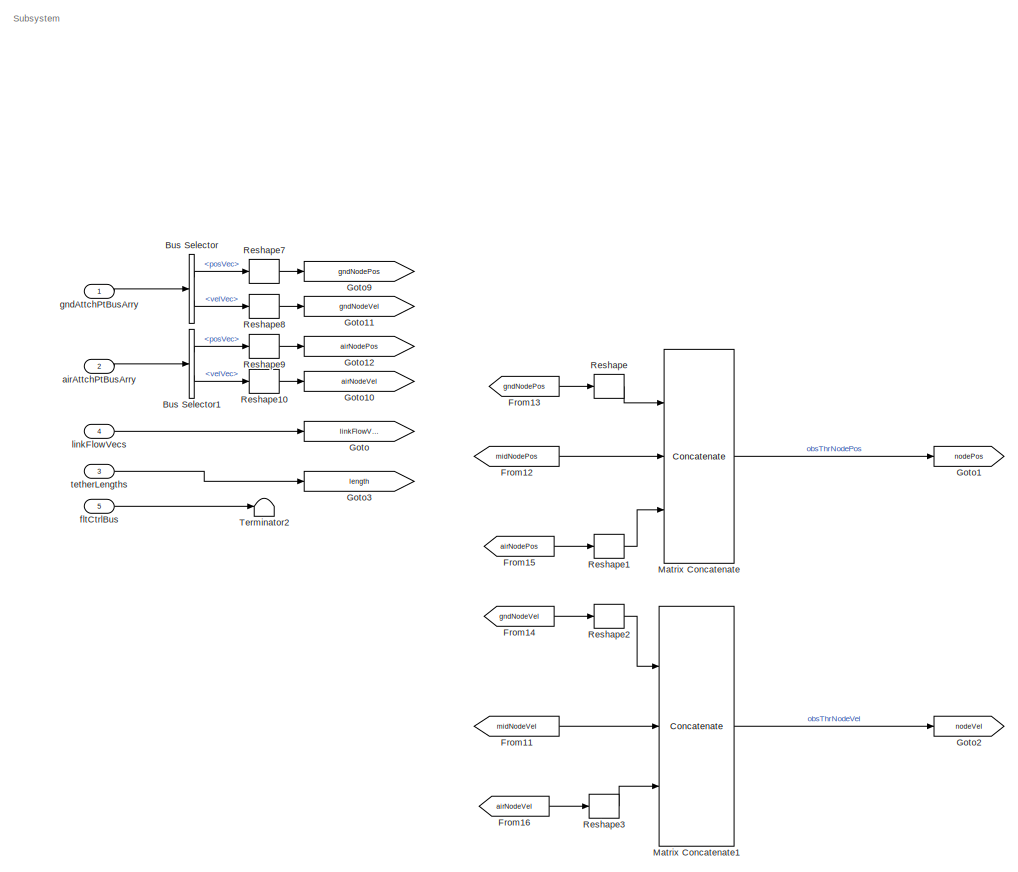
[diagram: Dynamic Tether LAS Estimator/Tether/ObsNNodeTether/4plusNodeTether - part 1/2, left side, full height]
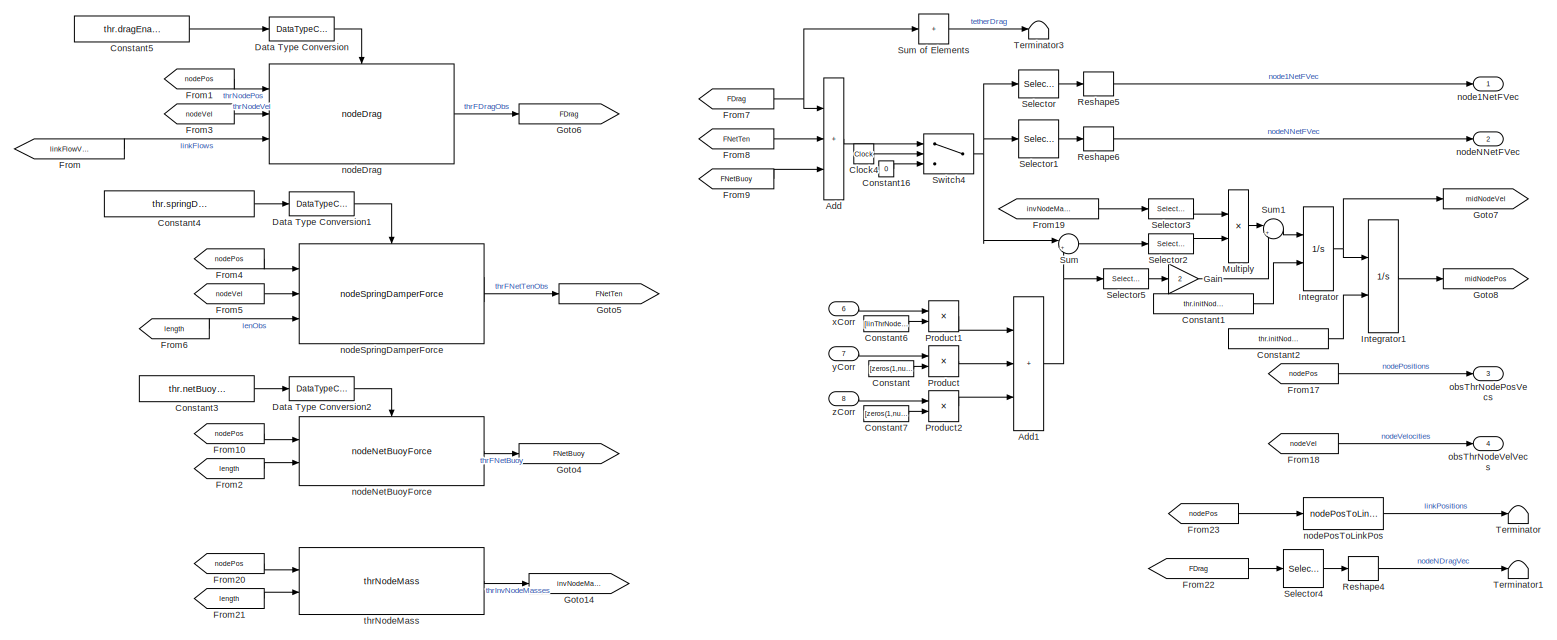
[diagram: Dynamic Tether LAS Estimator/Tether/ObsNNodeTether/4plusNodeTether - part 2/2, middle right region]
BLOCK [SubSystem] Dynamic Tether LAS Estimator/Tether/ObsNNodeTether/4plusNodeTether
  AncestorBlock = NNodeTether_cl/NNodeTether
  Ports = [8, 4]
  RequestExecContextInheritance = off
  VariantControl = strcmpi(OBSTETHER,'4plusNodeTether')
BLOCK [Sum] Dynamic Tether LAS Estimator/Tether/ObsNNodeTether/4plusNodeTether/Add
  IconShape = rectangular
  Inputs = 3
  Ports = [3, 1]
BLOCK [Sum] Dynamic Tether LAS Estimator/Tether/ObsNNodeTether/4plusNodeTether/Add1
  IconShape = rectangular
  Inputs = 3
  Ports = [3, 1]
BLOCK [BusSelector] Dynamic Tether LAS Estimator/Tether/ObsNNodeTether/4plusNodeTether/Bus Selector
  OutputSignals = posVec,velVec
  Ports = [1, 2]
BLOCK [BusSelector] Dynamic Tether LAS Estimator/Tether/ObsNNodeTether/4plusNodeTether/Bus Selector1
  OutputSignals = posVec,velVec
  Ports = [1, 2]
BLOCK [Clock] Dynamic Tether LAS Estimator/Tether/ObsNNodeTether/4plusNodeTether/Clock4
BLOCK [Constant] Dynamic Tether LAS Estimator/Tether/ObsNNodeTether/4plusNodeTether/Constant
  Value = [zeros(1,numObsThrNodes);linThrNodeCorrVec;zeros(1,numObsThrNodes)]
BLOCK [Constant] Dynamic Tether LAS Estimator/Tether/ObsNNodeTether/4plusNodeTether/Constant1
  Value = thr.initNodeVel
BLOCK [Constant] Dynamic Tether LAS Estimator/Tether/ObsNNodeTether/4plusNodeTether/Constant16
  Value = 0
BLOCK [Constant] Dynamic Tether LAS Estimator/Tether/ObsNNodeTether/4plusNodeTether/Constant2
  Value = thr.initNodePos
BLOCK [Constant] Dynamic Tether LAS Estimator/Tether/ObsNNodeTether/4plusNodeTether/Constant3
  Value = thr.netBuoyEnable
BLOCK [Constant] Dynamic Tether LAS Estimator/Tether/ObsNNodeTether/4plusNodeTether/Constant4
  Value = thr.springDamperEnable
BLOCK [Constant] Dynamic Tether LAS Estimator/Tether/ObsNNodeTether/4plusNodeTether/Constant5
  Value = thr.dragEnable
BLOCK [Constant] Dynamic Tether LAS Estimator/Tether/ObsNNodeTether/4plusNodeTether/Constant6
  Value = [linThrNodeCorrVec;zeros(1,numObsThrNodes);zeros(1,numObsThrNodes)]
BLOCK [Constant] Dynamic Tether LAS Estimator/Tether/ObsNNodeTether/4plusNodeTether/Constant7
  Value = [zeros(1,numObsThrNodes);zeros(1,numObsThrNodes);linThrNodeCorrVec]
BLOCK [DataTypeConversion] Dynamic Tether LAS Estimator/Tether/ObsNNodeTether/4plusNodeTether/Data Type Conversion
  OutDataTypeStr = boolean
  RndMeth = Floor
  SaturateOnIntegerOverflow = off
BLOCK [DataTypeConversion] Dynamic Tether LAS Estimator/Tether/ObsNNodeTether/4plusNodeTether/Data Type Conversion1
  OutDataTypeStr = boolean
  RndMeth = Floor
  SaturateOnIntegerOverflow = off
BLOCK [DataTypeConversion] Dynamic Tether LAS Estimator/Tether/ObsNNodeTether/4plusNodeTether/Data Type Conversion2
  OutDataTypeStr = boolean
  RndMeth = Floor
  SaturateOnIntegerOverflow = off
BLOCK [From] Dynamic Tether LAS Estimator/Tether/ObsNNodeTether/4plusNodeTether/From
  GotoTag = linkFlowVelVecs
BLOCK [From] Dynamic Tether LAS Estimator/Tether/ObsNNodeTether/4plusNodeTether/From1
  GotoTag = nodePos
BLOCK [From] Dynamic Tether LAS Estimator/Tether/ObsNNodeTether/4plusNodeTether/From10
  GotoTag = nodePos
BLOCK [From] Dynamic Tether LAS Estimator/Tether/ObsNNodeTether/4plusNodeTether/From11
  GotoTag = midNodeVel
BLOCK [From] Dynamic Tether LAS Estimator/Tether/ObsNNodeTether/4plusNodeTether/From12
  GotoTag = midNodePos
BLOCK [From] Dynamic Tether LAS Estimator/Tether/ObsNNodeTether/4plusNodeTether/From13
  GotoTag = gndNodePos
BLOCK [From] Dynamic Tether LAS Estimator/Tether/ObsNNodeTether/4plusNodeTether/From14
  GotoTag = gndNodeVel
BLOCK [From] Dynamic Tether LAS Estimator/Tether/ObsNNodeTether/4plusNodeTether/From15
  GotoTag = airNodePos
BLOCK [From] Dynamic Tether LAS Estimator/Tether/ObsNNodeTether/4plusNodeTether/From16
  GotoTag = airNodeVel
BLOCK [From] Dynamic Tether LAS Estimator/Tether/ObsNNodeTether/4plusNodeTether/From17
  GotoTag = nodePos
BLOCK [From] Dynamic Tether LAS Estimator/Tether/ObsNNodeTether/4plusNodeTether/From18
  GotoTag = nodeVel
BLOCK [From] Dynamic Tether LAS Estimator/Tether/ObsNNodeTether/4plusNodeTether/From19
  GotoTag = invNodeMasses
BLOCK [From] Dynamic Tether LAS Estimator/Tether/ObsNNodeTether/4plusNodeTether/From2
  GotoTag = length
BLOCK [From] Dynamic Tether LAS Estimator/Tether/ObsNNodeTether/4plusNodeTether/From20
  GotoTag = nodePos
BLOCK [From] Dynamic Tether LAS Estimator/Tether/ObsNNodeTether/4plusNodeTether/From21
  GotoTag = length
BLOCK [From] Dynamic Tether LAS Estimator/Tether/ObsNNodeTether/4plusNodeTether/From22
  GotoTag = FDrag
BLOCK [From] Dynamic Tether LAS Estimator/Tether/ObsNNodeTether/4plusNodeTether/From23
  GotoTag = nodePos
BLOCK [From] Dynamic Tether LAS Estimator/Tether/ObsNNodeTether/4plusNodeTether/From3
  GotoTag = nodeVel
BLOCK [From] Dynamic Tether LAS Estimator/Tether/ObsNNodeTether/4plusNodeTether/From4
  GotoTag = nodePos
BLOCK [From] Dynamic Tether LAS Estimator/Tether/ObsNNodeTether/4plusNodeTether/From5
  GotoTag = nodeVel
BLOCK [From] Dynamic Tether LAS Estimator/Tether/ObsNNodeTether/4plusNodeTether/From6
  GotoTag = length
BLOCK [From] Dynamic Tether LAS Estimator/Tether/ObsNNodeTether/4plusNodeTether/From7
  GotoTag = FDrag
BLOCK [From] Dynamic Tether LAS Estimator/Tether/ObsNNodeTether/4plusNodeTether/From8
  GotoTag = FNetTen
BLOCK [From] Dynamic Tether LAS Estimator/Tether/ObsNNodeTether/4plusNodeTether/From9
  GotoTag = FNetBuoy
BLOCK [Gain] Dynamic Tether LAS Estimator/Tether/ObsNNodeTether/4plusNodeTether/Gain
  Gain = 2
BLOCK [Goto] Dynamic Tether LAS Estimator/Tether/ObsNNodeTether/4plusNodeTether/Goto
  GotoTag = linkFlowVelVecs
BLOCK [Goto] Dynamic Tether LAS Estimator/Tether/ObsNNodeTether/4plusNodeTether/Goto1
  GotoTag = nodePos
BLOCK [Goto] Dynamic Tether LAS Estimator/Tether/ObsNNodeTether/4plusNodeTether/Goto10
  GotoTag = airNodeVel
BLOCK [Goto] Dynamic Tether LAS Estimator/Tether/ObsNNodeTether/4plusNodeTether/Goto11
  GotoTag = gndNodeVel
BLOCK [Goto] Dynamic Tether LAS Estimator/Tether/ObsNNodeTether/4plusNodeTether/Goto12
  GotoTag = airNodePos
BLOCK [Goto] Dynamic Tether LAS Estimator/Tether/ObsNNodeTether/4plusNodeTether/Goto14
  GotoTag = invNodeMasses
BLOCK [Goto] Dynamic Tether LAS Estimator/Tether/ObsNNodeTether/4plusNodeTether/Goto2
  GotoTag = nodeVel
BLOCK [Goto] Dynamic Tether LAS Estimator/Tether/ObsNNodeTether/4plusNodeTether/Goto3
  GotoTag = length
BLOCK [Goto] Dynamic Tether LAS Estimator/Tether/ObsNNodeTether/4plusNodeTether/Goto4
  GotoTag = FNetBuoy
BLOCK [Goto] Dynamic Tether LAS Estimator/Tether/ObsNNodeTether/4plusNodeTether/Goto5
  GotoTag = FNetTen
BLOCK [Goto] Dynamic Tether LAS Estimator/Tether/ObsNNodeTether/4plusNodeTether/Goto6
  GotoTag = FDrag
BLOCK [Goto] Dynamic Tether LAS Estimator/Tether/ObsNNodeTether/4plusNodeTether/Goto7
  GotoTag = midNodeVel
BLOCK [Goto] Dynamic Tether LAS Estimator/Tether/ObsNNodeTether/4plusNodeTether/Goto8
  GotoTag = midNodePos
BLOCK [Goto] Dynamic Tether LAS Estimator/Tether/ObsNNodeTether/4plusNodeTether/Goto9
  GotoTag = gndNodePos
BLOCK [Integrator] Dynamic Tether LAS Estimator/Tether/ObsNNodeTether/4plusNodeTether/Integrator
  InitialConditionSource = external
  Ports = [2, 1]
BLOCK [Integrator] Dynamic Tether LAS Estimator/Tether/ObsNNodeTether/4plusNodeTether/Integrator1
  InitialConditionSource = external
  Ports = [2, 1]
BLOCK [Concatenate] Dynamic Tether LAS Estimator/Tether/ObsNNodeTether/4plusNodeTether/Matrix Concatenate
  ConcatenateDimension = 2
  Mode = Multidimensional array
  NumInputs = 3
  Ports = [3, 1]
BLOCK [Concatenate] Dynamic Tether LAS Estimator/Tether/ObsNNodeTether/4plusNodeTether/Matrix Concatenate1
  ConcatenateDimension = 2
  Mode = Multidimensional array
  NumInputs = 3
  Ports = [3, 1]
BLOCK [Product] Dynamic Tether LAS Estimator/Tether/ObsNNodeTether/4plusNodeTether/Multiply
  Ports = [2, 1]
BLOCK [Product] Dynamic Tether LAS Estimator/Tether/ObsNNodeTether/4plusNodeTether/Product
  Ports = [2, 1]
BLOCK [Product] Dynamic Tether LAS Estimator/Tether/ObsNNodeTether/4plusNodeTether/Product1
  Ports = [2, 1]
BLOCK [Product] Dynamic Tether LAS Estimator/Tether/ObsNNodeTether/4plusNodeTether/Product2
  Ports = [2, 1]
BLOCK [Reshape] Dynamic Tether LAS Estimator/Tether/ObsNNodeTether/4plusNodeTether/Reshape
  OutputDimensionality = Column vector (2-D)
  Ports = [1, 1]
BLOCK [Reshape] Dynamic Tether LAS Estimator/Tether/ObsNNodeTether/4plusNodeTether/Reshape1
  OutputDimensionality = Column vector (2-D)
  Ports = [1, 1]
BLOCK [Reshape] Dynamic Tether LAS Estimator/Tether/ObsNNodeTether/4plusNodeTether/Reshape10
  OutputDimensionality = Column vector (2-D)
  Ports = [1, 1]
BLOCK [Reshape] Dynamic Tether LAS Estimator/Tether/ObsNNodeTether/4plusNodeTether/Reshape2
  OutputDimensionality = Column vector (2-D)
  Ports = [1, 1]
BLOCK [Reshape] Dynamic Tether LAS Estimator/Tether/ObsNNodeTether/4plusNodeTether/Reshape3
  OutputDimensionality = Column vector (2-D)
  Ports = [1, 1]
BLOCK [Reshape] Dynamic Tether LAS Estimator/Tether/ObsNNodeTether/4plusNodeTether/Reshape4
  OutputDimensionality = Column vector (2-D)
  Ports = [1, 1]
BLOCK [Reshape] Dynamic Tether LAS Estimator/Tether/ObsNNodeTether/4plusNodeTether/Reshape5
  OutputDimensionality = Column vector (2-D)
  Ports = [1, 1]
BLOCK [Reshape] Dynamic Tether LAS Estimator/Tether/ObsNNodeTether/4plusNodeTether/Reshape6
  OutputDimensionality = Column vector (2-D)
  Ports = [1, 1]
BLOCK [Reshape] Dynamic Tether LAS Estimator/Tether/ObsNNodeTether/4plusNodeTether/Reshape7
  OutputDimensionality = Column vector (2-D)
  Ports = [1, 1]
BLOCK [Reshape] Dynamic Tether LAS Estimator/Tether/ObsNNodeTether/4plusNodeTether/Reshape8
  OutputDimensionality = Column vector (2-D)
  Ports = [1, 1]
BLOCK [Reshape] Dynamic Tether LAS Estimator/Tether/ObsNNodeTether/4plusNodeTether/Reshape9
  OutputDimensionality = Column vector (2-D)
  Ports = [1, 1]
BLOCK [Selector] Dynamic Tether LAS Estimator/Tether/ObsNNodeTether/4plusNodeTether/Selector
  IndexOptions = Select all,Index vector (dialog)
  Indices = [1 3],1
  InputPortWidth = 3
  NumberOfDimensions = 2
  OutputSizes = 1,1
  Ports = [1, 1]
BLOCK [Selector] Dynamic Tether LAS Estimator/Tether/ObsNNodeTether/4plusNodeTether/Selector1
  IndexOptions = Select all,Starting index (dialog)
  Indices = [1 3],numNodes
  InputPortWidth = 3
  NumberOfDimensions = 2
  OutputSizes = 1,1
  Ports = [1, 1]
BLOCK [Selector] Dynamic Tether LAS Estimator/Tether/ObsNNodeTether/4plusNodeTether/Selector2
  IndexOptions = Select all,Index vector (dialog)
  Indices = [1 3],2:numNodes-1
  InputPortWidth = 3
  NumberOfDimensions = 2
  OutputSizes = 1,1
  Ports = [1, 1]
BLOCK [Selector] Dynamic Tether LAS Estimator/Tether/ObsNNodeTether/4plusNodeTether/Selector3
  IndexOptions = Select all,Index vector (dialog)
  Indices = [1 3],2:numNodes-1
  InputPortWidth = 3
  NumberOfDimensions = 2
  OutputSizes = 1,1
  Ports = [1, 1]
BLOCK [Selector] Dynamic Tether LAS Estimator/Tether/ObsNNodeTether/4plusNodeTether/Selector4
  IndexOptions = Select all,Starting index (dialog)
  Indices = [1 3],numNodes
  InputPortWidth = 3
  NumberOfDimensions = 2
  OutputSizes = 1,1
  Ports = [1, 1]
BLOCK [Selector] Dynamic Tether LAS Estimator/Tether/ObsNNodeTether/4plusNodeTether/Selector5
  IndexOptions = Select all,Index vector (dialog)
  Indices = [1 3],2:numNodes-1
  InputPortWidth = 3
  NumberOfDimensions = 2
  OutputSizes = 1,1
  Ports = [1, 1]
BLOCK [Sum] Dynamic Tether LAS Estimator/Tether/ObsNNodeTether/4plusNodeTether/Sum
  Inputs = |++
  Ports = [2, 1]
BLOCK [Sum] Dynamic Tether LAS Estimator/Tether/ObsNNodeTether/4plusNodeTether/Sum of Elements
  CollapseDim = 2
  CollapseMode = Specified dimension
  IconShape = rectangular
  Inputs = +
  Ports = [1, 1]
BLOCK [Sum] Dynamic Tether LAS Estimator/Tether/ObsNNodeTether/4plusNodeTether/Sum1
  Inputs = |++
  Ports = [2, 1]
BLOCK [Switch] Dynamic Tether LAS Estimator/Tether/ObsNNodeTether/4plusNodeTether/Switch4
  Criteria = u2 > Threshold
  InputSameDT = off
  NameLocation = left
  SaturateOnIntegerOverflow = off
  Threshold = tow_start_time
BLOCK [Terminator] Dynamic Tether LAS Estimator/Tether/ObsNNodeTether/4plusNodeTether/Terminator
BLOCK [Terminator] Dynamic Tether LAS Estimator/Tether/ObsNNodeTether/4plusNodeTether/Terminator1
BLOCK [Terminator] Dynamic Tether LAS Estimator/Tether/ObsNNodeTether/4plusNodeTether/Terminator2
BLOCK [Terminator] Dynamic Tether LAS Estimator/Tether/ObsNNodeTether/4plusNodeTether/Terminator3
BLOCK [Inport] Dynamic Tether LAS Estimator/Tether/ObsNNodeTether/4plusNodeTether/airAttchPtBusArry
  OutDataTypeStr = Bus: thrAttachPtKinematicsBus
  Port = 2
BLOCK [Inport] Dynamic Tether LAS Estimator/Tether/ObsNNodeTether/4plusNodeTether/fltCtrlBus
  Port = 5
BLOCK [Inport] Dynamic Tether LAS Estimator/Tether/ObsNNodeTether/4plusNodeTether/gndAttchPtBusArry
  OutDataTypeStr = Bus: thrAttachPtKinematicsBus
BLOCK [Inport] Dynamic Tether LAS Estimator/Tether/ObsNNodeTether/4plusNodeTether/linkFlowVecs
  Port = 4
BLOCK [Outport] Dynamic Tether LAS Estimator/Tether/ObsNNodeTether/4plusNodeTether/node1NetFVec
  VectorParamsAs1DForOutWhenUnconnected = off
BLOCK [Reference] Dynamic Tether LAS Estimator/Tether/ObsNNodeTether/4plusNodeTether/nodeDrag  REF=nodeDragForce_ul/nodeDrag
  Ports = [3, 1, 1]
  SourceBlock = nodeDragForce_ul/nodeDrag
BLOCK [Outport] Dynamic Tether LAS Estimator/Tether/ObsNNodeTether/4plusNodeTether/nodeNNetFVec
  Port = 2
  VectorParamsAs1DForOutWhenUnconnected = off
BLOCK [Reference] Dynamic Tether LAS Estimator/Tether/ObsNNodeTether/4plusNodeTether/nodeNetBuoyForce  REF=nodeNetBuoyForce_ul/nodeNetBuoyForce
  Ports = [2, 1, 1]
  SourceBlock = nodeNetBuoyForce_ul/nodeNetBuoyForce
BLOCK [Reference] Dynamic Tether LAS Estimator/Tether/ObsNNodeTether/4plusNodeTether/nodePosToLinkPos  REF=nodePosToLinkPos_ul/nodePosToLinkPos
  Ports = [1, 1]
  SourceBlock = nodePosToLinkPos_ul/nodePosToLinkPos
  SourceType = SubSystem
BLOCK [Reference] Dynamic Tether LAS Estimator/Tether/ObsNNodeTether/4plusNodeTether/nodeSpringDamperForce  REF=nodeSpringDamperForce_ul/nodeSpringDamperForce
  Ports = [3, 2, 1]
  SourceBlock = nodeSpringDamperForce_ul/nodeSpringDamperForce
BLOCK [Outport] Dynamic Tether LAS Estimator/Tether/ObsNNodeTether/4plusNodeTether/obsThrNodePosVecs
  Port = 3
  VectorParamsAs1DForOutWhenUnconnected = off
BLOCK [Outport] Dynamic Tether LAS Estimator/Tether/ObsNNodeTether/4plusNodeTether/obsThrNodeVelVecs
  Port = 4
  VectorParamsAs1DForOutWhenUnconnected = off
BLOCK [Inport] Dynamic Tether LAS Estimator/Tether/ObsNNodeTether/4plusNodeTether/tetherLengths
  Port = 3
BLOCK [Reference] Dynamic Tether LAS Estimator/Tether/ObsNNodeTether/4plusNodeTether/thrNodeMass  REF=thrNodeMass_ul/thrNodeMass
  Ports = [2, 1]
  SourceBlock = thrNodeMass_ul/thrNodeMass
BLOCK [Inport] Dynamic Tether LAS Estimator/Tether/ObsNNodeTether/4plusNodeTether/xCorr
  Port = 6
BLOCK [Inport] Dynamic Tether LAS Estimator/Tether/ObsNNodeTether/4plusNodeTether/yCorr
  Port = 7
BLOCK [Inport] Dynamic Tether LAS Estimator/Tether/ObsNNodeTether/4plusNodeTether/zCorr
  Port = 8
BLOCK [Inport] Dynamic Tether LAS Estimator/Tether/ObsNNodeTether/airAttchPtBusArry
  Port = 2
BLOCK [Inport] Dynamic Tether LAS Estimator/Tether/ObsNNodeTether/fltCtrlBus
  Port = 5
BLOCK [Inport] Dynamic Tether LAS Estimator/Tether/ObsNNodeTether/gndAttchPtBusArry
BLOCK [Inport] Dynamic Tether LAS Estimator/Tether/ObsNNodeTether/linkFlowVecs
  Port = 4
BLOCK [Outport] Dynamic Tether LAS Estimator/Tether/ObsNNodeTether/node1NetFVec
BLOCK [Outport] Dynamic Tether LAS Estimator/Tether/ObsNNodeTether/nodeNNetFVec
  Port = 2
BLOCK [Outport] Dynamic Tether LAS Estimator/Tether/ObsNNodeTether/obsThrNodePosVecs
  Port = 3
BLOCK [Outport] Dynamic Tether LAS Estimator/Tether/ObsNNodeTether/obsThrNodeVelVecs
  Port = 4
BLOCK [Inport] Dynamic Tether LAS Estimator/Tether/ObsNNodeTether/tetherLengths
  Port = 3
BLOCK [Inport] Dynamic Tether LAS Estimator/Tether/ObsNNodeTether/xCorr
  Port = 6
BLOCK [Inport] Dynamic Tether LAS Estimator/Tether/ObsNNodeTether/yCorr
  Port = 7
BLOCK [Inport] Dynamic Tether LAS Estimator/Tether/ObsNNodeTether/zCorr
  Port = 8
BLOCK [Gain] Dynamic Tether LAS Estimator/Tether/On//Off switch//rotate into ground frame as defined by sam (right handed w z pointing down)2
  Gain = las.tetherEnable.Value*[1 -1 -1]'
BLOCK [Product] Dynamic Tether LAS Estimator/Tether/Product3
  Ports = [2, 1]
BLOCK [Reshape] Dynamic Tether LAS Estimator/Tether/Reshape
  OutputDimensionality = Column vector (2-D)
  Ports = [1, 1]
BLOCK [Selector] Dynamic Tether LAS Estimator/Tether/Selector
  IndexOptions = Index vector (dialog),Index vector (dialog)
  Indices = [1 2 3],1
  InputPortWidth = 3
  NumberOfDimensions = 2
  OutputSizes = 1,1
  Ports = [1, 1]
BLOCK [Selector] Dynamic Tether LAS Estimator/Tether/Selector1
  IndexOptions = Index vector (dialog),Index vector (dialog)
  Indices = [1 2 3],2
  InputPortWidth = 3
  NumberOfDimensions = 2
  OutputSizes = 1,1
  Ports = [1, 1]
BLOCK [Selector] Dynamic Tether LAS Estimator/Tether/Selector2
  IndexOptions = Index vector (dialog)
  Indices = [1]
  InputPortWidth = 3
  OutputSizes = 1
  Ports = [1, 1]
BLOCK [Selector] Dynamic Tether LAS Estimator/Tether/Selector3
  IndexOptions = Index vector (dialog)
  Indices = [3]
  InputPortWidth = 3
  OutputSizes = 1
  Ports = [1, 1]
BLOCK [Selector] Dynamic Tether LAS Estimator/Tether/Selector4
  IndexOptions = Index vector (dialog)
  Indices = [2]
  InputPortWidth = 3
  OutputSizes = 1
  Ports = [1, 1]
BLOCK [Sqrt] Dynamic Tether LAS Estimator/Tether/Sqrt
BLOCK [Sqrt] Dynamic Tether LAS Estimator/Tether/Sqrt1
BLOCK [Sum] Dynamic Tether LAS Estimator/Tether/Sum
  Inputs = |-+
  Ports = [2, 1]
BLOCK [Terminator] Dynamic Tether LAS Estimator/Tether/Terminator
BLOCK [Terminator] Dynamic Tether LAS Estimator/Tether/Terminator14
BLOCK [Reference] Dynamic Tether LAS Estimator/Tether/firstOrdTrnsThm  REF=firstOrdTrnsThm_ul/firstOrdTrnsThm
  Ports = [3, 1]
  SourceBlock = firstOrdTrnsThm_ul/firstOrdTrnsThm
  SourceType = SubSystem
BLOCK [Inport] Dynamic Tether LAS Estimator/Tether/flowSpeed
  Port = 7
BLOCK [Inport] Dynamic Tether LAS Estimator/Tether/kiteAngVel
  Port = 6
BLOCK [Outport] Dynamic Tether LAS Estimator/Tether/kiteTensionVec
  Port = 5
BLOCK [Inport] Dynamic Tether LAS Estimator/Tether/oCb
  Port = 8
BLOCK [Outport] Dynamic Tether LAS Estimator/Tether/phiKine
  Port = 4
BLOCK [Inport] Dynamic Tether LAS Estimator/Tether/posKiteGnd
  Port = 4
BLOCK [Inport] Dynamic Tether LAS Estimator/Tether/raftPos
BLOCK [Outport] Dynamic Tether LAS Estimator/Tether/raftTensionMag
BLOCK [Outport] Dynamic Tether LAS Estimator/Tether/raftTensionVec
  Port = 2
BLOCK [Inport] Dynamic Tether LAS Estimator/Tether/raftVel
  Port = 2
BLOCK [Outport] Dynamic Tether LAS Estimator/Tether/thetaKine
  Port = 3
BLOCK [Inport] Dynamic Tether LAS Estimator/Tether/thrLen
  Port = 5
BLOCK [Inport] Dynamic Tether LAS Estimator/Tether/velKiteGnd
  Port = 3
BLOCK [Inport] Dynamic Tether LAS Estimator/Tether/xCorr
  Port = 9
BLOCK [Inport] Dynamic Tether LAS Estimator/Tether/yCorr
  Port = 10
BLOCK [Inport] Dynamic Tether LAS Estimator/Tether/zCorr
  Port = 11
BLOCK [Inport] Dynamic Tether LAS Estimator/depthMeas
  Port = 15
BLOCK [Outport] Dynamic Tether LAS Estimator/estKitePos
  Port = 5
BLOCK [Outport] Dynamic Tether LAS Estimator/estKiteVel
  Port = 6
BLOCK [Inport] Dynamic Tether LAS Estimator/flowSpd
BLOCK [Inport] Dynamic Tether LAS Estimator/kiteAngVel
  Port = 4
BLOCK [Inport] Dynamic Tether LAS Estimator/kiteEulerAngles
  Port = 3
BLOCK [Outport] Dynamic Tether LAS Estimator/phi
BLOCK [Outport] Dynamic Tether LAS Estimator/phiDot
  Port = 2
BLOCK [Inport] Dynamic Tether LAS Estimator/raftAcc
  Port = 10
BLOCK [Inport] Dynamic Tether LAS Estimator/raftPos
  Port = 8
BLOCK [Inport] Dynamic Tether LAS Estimator/raftPsi
  Port = 11
BLOCK [Inport] Dynamic Tether LAS Estimator/raftPsiDDot
  Port = 13
BLOCK [Inport] Dynamic Tether LAS Estimator/raftPsiDot
  Port = 12
BLOCK [Inport] Dynamic Tether LAS Estimator/raftVel
  Port = 9
BLOCK [Inport] Dynamic Tether LAS Estimator/tensionMeas
  Port = 14
BLOCK [Outport] Dynamic Tether LAS Estimator/theta
  Port = 3
BLOCK [Outport] Dynamic Tether LAS Estimator/thetaDot
  Port = 4
BLOCK [Inport] Dynamic Tether LAS Estimator/thrLen
  Port = 2
BLOCK [Reference] Filtered Derivative (Discrete or Continuous)  REF=eeGeneralControl/Filtered Derivative
(Discrete or Continuous)
  Ports = [1, 1]
  SourceBlock = eeGeneralControl/Filtered Derivative\n(Discrete or Continuous)
  SourceProductBaseCode = PS
  SourceType = Filtered Derivative (Discrete or Continuous)
BLOCK [Reference] Filtered Derivative (Discrete or Continuous)1  REF=eeGeneralControl/Filtered Derivative
(Discrete or Continuous)
  Ports = [1, 1]
  SourceBlock = eeGeneralControl/Filtered Derivative\n(Discrete or Continuous)
  SourceProductBaseCode = PS
  SourceType = Filtered Derivative (Discrete or Continuous)
BLOCK [Reference] Filtered Derivative (Discrete or Continuous)2  REF=eeGeneralControl/Filtered Derivative
(Discrete or Continuous)
  Commented = on
  Ports = [1, 1]
  SourceBlock = eeGeneralControl/Filtered Derivative\n(Discrete or Continuous)
  SourceProductBaseCode = PS
  SourceType = Filtered Derivative (Discrete or Continuous)
BLOCK [From] From
  GotoTag = expDataKiteEuler
BLOCK [FromWorkspace] From Workspace1
  Interpolate = off
  OutputAfterFinalValue = Holding final value
  SampleTime = 0.001
  VariableName = expDataEulerX
  ZeroCross = off
BLOCK [FromWorkspace] From Workspace10
  Interpolate = off
  OutputAfterFinalValue = Holding final value
  SampleTime = 0.001
  VariableName = expDataRaftPosX
  ZeroCross = off
BLOCK [FromWorkspace] From Workspace11
  Interpolate = off
  OutputAfterFinalValue = Holding final value
  SampleTime = 0.001
  VariableName = expDataTensMeas
  ZeroCross = off
BLOCK [FromWorkspace] From Workspace14
  Interpolate = off
  OutputAfterFinalValue = Holding final value
  SampleTime = 0.001
  VariableName = expDataKiteDepth
  ZeroCross = off
BLOCK [FromWorkspace] From Workspace15
  Interpolate = off
  OutputAfterFinalValue = Holding final value
  SampleTime = 0.001
  VariableName = extDataEulerX
  ZeroCross = off
BLOCK [FromWorkspace] From Workspace17
  Interpolate = off
  OutputAfterFinalValue = Holding final value
  SampleTime = 0.001
  VariableName = extDataEulerY
  ZeroCross = off
BLOCK [FromWorkspace] From Workspace18
  Interpolate = off
  OutputAfterFinalValue = Holding final value
  SampleTime = 0.001
  VariableName = extDataEulerZ
  ZeroCross = off
BLOCK [FromWorkspace] From Workspace19
  Interpolate = off
  OutputAfterFinalValue = Holding final value
  SampleTime = 0.001
  VariableName = extDataGyroX
  ZeroCross = off
BLOCK [FromWorkspace] From Workspace2
  Interpolate = off
  OutputAfterFinalValue = Holding final value
  SampleTime = 0.001
  VariableName = expDataEulerY
  ZeroCross = off
BLOCK [FromWorkspace] From Workspace20
  Interpolate = off
  OutputAfterFinalValue = Holding final value
  SampleTime = 0.001
  VariableName = extDataGyroY
  ZeroCross = off
BLOCK [FromWorkspace] From Workspace21
  Interpolate = off
  OutputAfterFinalValue = Holding final value
  SampleTime = 0.001
  VariableName = extDataGyroZ
  ZeroCross = off
BLOCK [FromWorkspace] From Workspace22
  Interpolate = off
  OutputAfterFinalValue = Holding final value
  SampleTime = 0.001
  VariableName = extDataAccX
  ZeroCross = off
BLOCK [FromWorkspace] From Workspace23
  Interpolate = off
  OutputAfterFinalValue = Holding final value
  SampleTime = 0.001
  VariableName = extDataAccY
  ZeroCross = off
BLOCK [FromWorkspace] From Workspace24
  Interpolate = off
  OutputAfterFinalValue = Holding final value
  SampleTime = 0.001
  VariableName = extDataAccZ
  ZeroCross = off
BLOCK [FromWorkspace] From Workspace25
  Interpolate = off
  OutputAfterFinalValue = Holding final value
  SampleTime = 0.001
  VariableName = extDataLAStheta
  ZeroCross = off
BLOCK [FromWorkspace] From Workspace26
  Interpolate = off
  OutputAfterFinalValue = Holding final value
  SampleTime = 0.001
  VariableName = extDataRaftPosX
  ZeroCross = off
BLOCK [FromWorkspace] From Workspace27
  Interpolate = off
  OutputAfterFinalValue = Holding final value
  SampleTime = 0.001
  VariableName = extDataLASphi
  ZeroCross = off
BLOCK [FromWorkspace] From Workspace28
  Interpolate = off
  OutputAfterFinalValue = Holding final value
  SampleTime = 0.001
  VariableName = extDataRaftVelX
  ZeroCross = off
BLOCK [FromWorkspace] From Workspace29
  Interpolate = off
  OutputAfterFinalValue = Holding final value
  SampleTime = 0.001
  VariableName = extDataRaftVelY
  ZeroCross = off
BLOCK [FromWorkspace] From Workspace3
  Interpolate = off
  OutputAfterFinalValue = Holding final value
  SampleTime = 0.001
  VariableName = expDataGyroX
  ZeroCross = off
BLOCK [FromWorkspace] From Workspace30
  Interpolate = off
  OutputAfterFinalValue = Holding final value
  SampleTime = 0.001
  VariableName = extDataRaftVelZ
  ZeroCross = off
BLOCK [FromWorkspace] From Workspace31
  Interpolate = off
  OutputAfterFinalValue = Holding final value
  SampleTime = 0.001
  VariableName = extDataRaftAccX
  ZeroCross = off
BLOCK [FromWorkspace] From Workspace32
  Interpolate = off
  OutputAfterFinalValue = Holding final value
  SampleTime = 0.001
  VariableName = extDataRaftAccY
  ZeroCross = off
BLOCK [FromWorkspace] From Workspace33
  Interpolate = off
  OutputAfterFinalValue = Holding final value
  SampleTime = 0.001
  VariableName = extDataRaftAccZ
  ZeroCross = off
BLOCK [FromWorkspace] From Workspace34
  Interpolate = off
  OutputAfterFinalValue = Holding final value
  SampleTime = 0.001
  VariableName = extDataRaftYaw
  ZeroCross = off
BLOCK [FromWorkspace] From Workspace35
  Interpolate = off
  OutputAfterFinalValue = Holding final value
  SampleTime = 0.001
  VariableName = extDataRaftYawDot
  ZeroCross = off
BLOCK [FromWorkspace] From Workspace36
  Interpolate = off
  OutputAfterFinalValue = Holding final value
  SampleTime = 0.001
  VariableName = extDataRaftYawDDot
  ZeroCross = off
BLOCK [FromWorkspace] From Workspace37
  Interpolate = off
  OutputAfterFinalValue = Holding final value
  SampleTime = 0.001
  VariableName = extDataKiteDepth
  ZeroCross = off
BLOCK [FromWorkspace] From Workspace39
  Interpolate = off
  OutputAfterFinalValue = Holding final value
  SampleTime = 0.001
  VariableName = extDataTensMeas
  ZeroCross = off
BLOCK [FromWorkspace] From Workspace4
  Interpolate = off
  OutputAfterFinalValue = Holding final value
  SampleTime = 0.001
  VariableName = expDataGyroY
  ZeroCross = off
BLOCK [FromWorkspace] From Workspace40
  Interpolate = off
  OutputAfterFinalValue = Holding final value
  SampleTime = 0.001
  VariableName = extDataRaftPosY
  ZeroCross = off
BLOCK [FromWorkspace] From Workspace41
  Interpolate = off
  OutputAfterFinalValue = Holding final value
  SampleTime = 0.001
  VariableName = extDataRaftPosZ
  ZeroCross = off
BLOCK [FromWorkspace] From Workspace46
  Interpolate = off
  OutputAfterFinalValue = Holding final value
  SampleTime = 0.001
  VariableName = expDataEulerZ
  ZeroCross = off
BLOCK [FromWorkspace] From Workspace47
  Interpolate = off
  OutputAfterFinalValue = Holding final value
  SampleTime = 0.001
  VariableName = expDataLASphi
  ZeroCross = off
BLOCK [FromWorkspace] From Workspace5
  Interpolate = off
  OutputAfterFinalValue = Holding final value
  SampleTime = 0.001
  VariableName = expDataGyroZ
  ZeroCross = off
BLOCK [FromWorkspace] From Workspace6
  Interpolate = off
  OutputAfterFinalValue = Holding final value
  SampleTime = 0.001
  VariableName = expDataAccX
  ZeroCross = off
BLOCK [FromWorkspace] From Workspace7
  Interpolate = off
  OutputAfterFinalValue = Holding final value
  SampleTime = 0.001
  VariableName = expDataAccY
  ZeroCross = off
BLOCK [FromWorkspace] From Workspace8
  Interpolate = off
  OutputAfterFinalValue = Holding final value
  SampleTime = 0.001
  VariableName = expDataAccZ
  ZeroCross = off
BLOCK [FromWorkspace] From Workspace9
  Interpolate = off
  OutputAfterFinalValue = Holding final value
  SampleTime = 0.001
  VariableName = expDataLAStheta
  ZeroCross = off
BLOCK [From] From1
  Commented = on
  GotoTag = expDataAngVel
BLOCK [From] From10
  GotoTag = GndStnPosVecIN
BLOCK [From] From11
  GotoTag = kiteEulerAnglesIN
BLOCK [From] From12
  Commented = on
  GotoTag = GndStnPosVec
BLOCK [From] From13
  Commented = on
  GotoTag = kiteEulerAngles
BLOCK [From] From14
  Commented = on
  GotoTag = TetherLen
BLOCK [From] From15
  Commented = on
  GotoTag = theta_meas
BLOCK [From] From16
  Commented = on
  GotoTag = phi_meas
BLOCK [From] From17
  GotoTag = expDataKiteDepth
BLOCK [From] From18
  GotoTag = expDataTensMeas
BLOCK [From] From19
  GotoTag = extDataKiteEuler
BLOCK [From] From2
  GotoTag = TetherLenIN
BLOCK [From] From20
  GotoTag = modelKiteEulerAngles
BLOCK [From] From27
  GotoTag = expDataAngVel
BLOCK [From] From28
  GotoTag = expDataAcc
BLOCK [From] From29
  GotoTag = modelKiteAngVelWerror
BLOCK [From] From3
  GotoTag = GndStnPosVecIN
BLOCK [From] From30
  GotoTag = modelKiteAccBdyWerror
BLOCK [From] From31
  GotoTag = expDataLASphi
BLOCK [From] From32
  GotoTag = expDataLAStheta
BLOCK [From] From33
  GotoTag = expDataRaftPos
BLOCK [From] From34
  GotoTag = extDataAngVel
BLOCK [From] From35
  GotoTag = extDataAcc
BLOCK [From] From36
  GotoTag = extDataLASphi
BLOCK [From] From37
  GotoTag = extDataLAStheta
BLOCK [From] From38
  GotoTag = extDataRaftPos
BLOCK [From] From39
  GotoTag = expDataRaftVel
BLOCK [From] From4
  GotoTag = phi_measIN
BLOCK [From] From40
  GotoTag = extDataRaftVel
BLOCK [From] From41
  GotoTag = expDataRaftAcc
BLOCK [From] From42
  GotoTag = extDataRaftAcc
BLOCK [From] From43
  GotoTag = extDataRaftYaw
BLOCK [From] From44
  GotoTag = extDataRaftYawDot
BLOCK [From] From45
  GotoTag = extDataRaftYawDDot
BLOCK [From] From46
  GotoTag = extDataKiteDepth
BLOCK [From] From47
  GotoTag = extDataTensMeas
BLOCK [From] From5
  GotoTag = theta_measIN
BLOCK [From] From6
  GotoTag = kiteEulerAnglesIN
BLOCK [From] From64
  GotoTag = velocitySquared
BLOCK [From] From7
  GotoTag = TetherLenIN
BLOCK [From] From75
  GotoTag = modelRaftAccBdyWerror
BLOCK [From] From76
  GotoTag = raftVel
BLOCK [From] From77
  GotoTag = raftPos
BLOCK [From] From78
  GotoTag = expDataFlowVel
BLOCK [From] From8
  GotoTag = theta_measIN
BLOCK [From] From80
  GotoTag = expDataThrLen
BLOCK [From] From81
  GotoTag = extDataFlowVel
BLOCK [From] From82
  GotoTag = extDataThrLen
BLOCK [From] From83
  GotoTag = CFkiteEuler
BLOCK [From] From84
  GotoTag = oCb_kite
BLOCK [From] From9
  GotoTag = phi_measIN
BLOCK [Gain] Gain
BLOCK [Gain] Gain1
  Gain = -pi/180
BLOCK [Gain] Gain10
  Gain = -pi/180
BLOCK [Gain] Gain11
  Gain = -1
BLOCK [Gain] Gain12
  Commented = on
  Gain = -1
BLOCK [Gain] Gain13
  Gain = 0
BLOCK [Gain] Gain14
  Gain = 0
BLOCK [Gain] Gain15
  Gain = 0
BLOCK [Gain] Gain16
  Gain = 0
BLOCK [Gain] Gain17
  Gain = 0
BLOCK [Gain] Gain18
  Commented = on
  Gain = 0.1
BLOCK [Gain] Gain19
  Gain = 2
BLOCK [Gain] Gain2
  Gain = -1/100
BLOCK [Gain] Gain21
  Gain = 0
BLOCK [Gain] Gain22
  Gain = 0
BLOCK [Gain] Gain23
  Gain = 0
BLOCK [Gain] Gain24
  Gain = -1
BLOCK [Gain] Gain25
  Gain = -1
BLOCK [Gain] Gain26
BLOCK [Gain] Gain27
BLOCK [Gain] Gain28
  Gain = 0
BLOCK [Gain] Gain29
BLOCK [Gain] Gain3
BLOCK [Gain] Gain30
  Gain = pi/180
BLOCK [Gain] Gain31
  Gain = pi/180
BLOCK [Gain] Gain32
  Gain = pi/180
BLOCK [Gain] Gain33
  Gain = 9.81
BLOCK [Gain] Gain34
  Gain = 9.81
BLOCK [Gain] Gain35
  Gain = 9.81
BLOCK [Gain] Gain36
  Gain = pi/180
BLOCK [Gain] Gain37
BLOCK [Gain] Gain38
BLOCK [Gain] Gain39
BLOCK [Gain] Gain4
  Gain = -1
BLOCK [Gain] Gain5
BLOCK [Gain] Gain6
BLOCK [Gain] Gain7
BLOCK [Gain] Gain8
BLOCK [Gain] Gain9
  Gain = -1
BLOCK [Goto] Goto
  GotoTag = phi_measIN
BLOCK [Goto] Goto1
  GotoTag = theta_measIN
BLOCK [Goto] Goto12
  GotoTag = velocitySquared
BLOCK [Goto] Goto15
  GotoTag = expDataAcc
BLOCK [Goto] Goto16
  GotoTag = expDataKiteEuler
BLOCK [Goto] Goto17
  GotoTag = expDataLAStheta
BLOCK [Goto] Goto18
  GotoTag = expDataRaftPos
BLOCK [Goto] Goto19
  GotoTag = expDataRaftVel
BLOCK [Goto] Goto2
  GotoTag = TetherLenIN
BLOCK [Goto] Goto20
  GotoTag = expDataRaftAcc
BLOCK [Goto] Goto21
  GotoTag = extDataAcc
BLOCK [Goto] Goto22
  GotoTag = extDataAngVel
BLOCK [Goto] Goto23
  GotoTag = extDataLAStheta
BLOCK [Goto] Goto24
  GotoTag = extDataLASphi
BLOCK [Goto] Goto25
  GotoTag = extDataRaftPos
BLOCK [Goto] Goto26
  GotoTag = extDataRaftYaw
BLOCK [Goto] Goto27
  GotoTag = extDataRaftVel
BLOCK [Goto] Goto28
  GotoTag = extDataRaftYawDot
BLOCK [Goto] Goto29
  GotoTag = extDataRaftAcc
BLOCK [Goto] Goto3
  GotoTag = expDataThrLen
BLOCK [Goto] Goto30
  GotoTag = extDataRaftYawDDot
BLOCK [Goto] Goto31
  GotoTag = extDataKiteDepth
BLOCK [Goto] Goto32
  GotoTag = extDataTensMeas
BLOCK [Goto] Goto4
  GotoTag = GndStnPosVecIN
BLOCK [Goto] Goto44
  GotoTag = extDataThrLen
BLOCK [Goto] Goto49
  GotoTag = oCb_kite
BLOCK [Goto] Goto5
  GotoTag = kiteEulerAnglesIN
BLOCK [Goto] Goto54
  GotoTag = extDataFlowVel
BLOCK [Goto] Goto56
  GotoTag = expDataAngVel
BLOCK [Goto] Goto57
  GotoTag = expDataKiteDepth
BLOCK [Goto] Goto58
  GotoTag = expDataFlowVel
BLOCK [Goto] Goto6
  GotoTag = expDataLASphi
BLOCK [Goto] Goto7
  GotoTag = expDataTensMeas
BLOCK [Goto] Goto9
  GotoTag = extDataKiteEuler
BLOCK [Ground] Ground3
BLOCK [Ground] Ground8
BLOCK [Reference] Kinematic LAS Estimator  REF=stateEstimation/State Estimation/Kinematic LAS Estimator
  Commented = on
  Ports = [5, 2]
  SourceBlock = stateEstimation/State Estimation/Kinematic LAS Estimator
  SourceType = SubSystem
BLOCK [Inport] LASphi
  Port = 3
BLOCK [Inport] LAStheta
  Port = 4
BLOCK [Product] Matrix Multiply1
  Multiplication = Matrix(*)
  Ports = [2, 1]
BLOCK [Product] Matrix Multiply6
  Multiplication = Matrix(*)
  Ports = [2, 1]
BLOCK [Memory] Memory
BLOCK [Mux] Mux1
  DisplayOption = bar
  Inputs = 3
  Ports = [3, 1]
BLOCK [Mux] Mux10
  DisplayOption = bar
  Inputs = 3
  Ports = [3, 1]
BLOCK [Mux] Mux2
  DisplayOption = bar
  Inputs = 3
  Ports = [3, 1]
BLOCK [Mux] Mux22
  DisplayOption = bar
  Inputs = 3
  Ports = [3, 1]
BLOCK [Mux] Mux23
  DisplayOption = bar
  Inputs = 3
  Ports = [3, 1]
BLOCK [Mux] Mux24
  DisplayOption = bar
  Inputs = 3
  Ports = [3, 1]
BLOCK [Mux] Mux3
  DisplayOption = bar
  Inputs = 3
  Ports = [3, 1]
BLOCK [Mux] Mux4
  DisplayOption = bar
  Inputs = 3
  Ports = [3, 1]
BLOCK [Mux] Mux5
  DisplayOption = bar
  Inputs = 3
  Ports = [3, 1]
BLOCK [Mux] Mux6
  DisplayOption = bar
  Inputs = 3
  Ports = [3, 1]
BLOCK [Mux] Mux7
  DisplayOption = bar
  Inputs = 3
  Ports = [3, 1]
BLOCK [Mux] Mux8
  DisplayOption = bar
  Inputs = 3
  Ports = [3, 1]
BLOCK [Mux] Mux9
  DisplayOption = bar
  Inputs = 3
  Ports = [3, 1]
BLOCK [Product] Product
  Ports = [2, 1]
BLOCK [Reference] Ramp  REF=simulink/Sources/Ramp
  Ports = [0, 1]
  SourceBlock = simulink/Sources/Ramp
  SourceProductBaseCode = SL
  SourceType = Ramp
BLOCK [Reference] Ramp1  REF=simulink/Sources/Ramp
  Commented = on
  Ports = [0, 1]
  SourceBlock = simulink/Sources/Ramp
  SourceProductBaseCode = SL
  SourceType = Ramp
BLOCK [Reference] Random Source1  REF=dspsrcs4/Random
Source
  Ports = [0, 1]
  SourceBlock = dspsrcs4/Random\nSource
  SourceProductBaseCode = DS
  SourceType = Random Source
  UserDataPersistent = on
BLOCK [Reference] Random Source3  REF=dspsrcs4/Random
Source
  Ports = [0, 1]
  SourceBlock = dspsrcs4/Random\nSource
  SourceProductBaseCode = DS
  SourceType = Random Source
  UserDataPersistent = on
BLOCK [Reference] Random Source4  REF=dspsrcs4/Random
Source
  Ports = [0, 1]
  SourceBlock = dspsrcs4/Random\nSource
  SourceProductBaseCode = DS
  SourceType = Random Source
  UserDataPersistent = on
BLOCK [Reference] Random Source5  REF=dspsrcs4/Random
Source
  Commented = on
  Ports = [0, 1]
  SourceBlock = dspsrcs4/Random\nSource
  SourceProductBaseCode = DS
  SourceType = Random Source
  UserDataPersistent = on
BLOCK [Reshape] Reshape1
  OutputDimensionality = Column vector (2-D)
  Ports = [1, 1]
BLOCK [Reshape] Reshape10
  OutputDimensionality = Column vector (2-D)
  Ports = [1, 1]
BLOCK [Reshape] Reshape2
  OutputDimensionality = Column vector (2-D)
  Ports = [1, 1]
BLOCK [Reshape] Reshape3
  OutputDimensionality = Column vector (2-D)
  Ports = [1, 1]
BLOCK [Reshape] Reshape4
  OutputDimensionality = Column vector (2-D)
  Ports = [1, 1]
BLOCK [Reshape] Reshape5
  OutputDimensionality = Column vector (2-D)
  Ports = [1, 1]
BLOCK [Reshape] Reshape6
  OutputDimensionality = Column vector (2-D)
  Ports = [1, 1]
BLOCK [Reshape] Reshape7
  OutputDimensionality = Column vector (2-D)
  Ports = [1, 1]
BLOCK [Reshape] Reshape8
  OutputDimensionality = Column vector (2-D)
  Ports = [1, 1]
BLOCK [Reshape] Reshape9
  OutputDimensionality = Column vector (2-D)
  Ports = [1, 1]
BLOCK [Reference] Sample and Hold  REF=dspsigops/Sample
and Hold
  Ports = [1, 1, 0, 1]
  SourceBlock = dspsigops/Sample\nand Hold
  SourceProductBaseCode = DS
  SourceType = Sample and Hold
BLOCK [Reference] Sample and Hold3  REF=dspsigops/Sample
and Hold
  Ports = [1, 1, 0, 1]
  SourceBlock = dspsigops/Sample\nand Hold
  SourceProductBaseCode = DS
  SourceType = Sample and Hold
BLOCK [Reference] Sample and Hold4  REF=dspsigops/Sample
and Hold
  Ports = [1, 1, 0, 1]
  SourceBlock = dspsigops/Sample\nand Hold
  SourceProductBaseCode = DS
  SourceType = Sample and Hold
BLOCK [Saturate] Saturation
  LowerLimit = 0
  UpperLimit = 1
BLOCK [SignalGenerator] Square Wave Generator
  Frequency = 25
  Ports = [0, 1]
  WaveForm = square
BLOCK [SignalGenerator] Square Wave Generator3
  Frequency = 25
  Ports = [0, 1]
  WaveForm = square
BLOCK [SignalGenerator] Square Wave Generator4
  Frequency = 25
  Ports = [0, 1]
  WaveForm = square
BLOCK [Reference] Static Estimate  REF=stateEstimation/State Estimation/Static Estimate
  Ports = [5, 2]
  SourceBlock = stateEstimation/State Estimation/Static Estimate
  SourceType = SubSystem
BLOCK [Reference] Static Estimate w// Roller Correction  REF=stateEstimation/State Estimation/Static Estimate w// Roller Correction
  Ports = [5, 2]
  SourceBlock = stateEstimation/State Estimation/Static Estimate w// Roller Correction
  SourceType = SubSystem
BLOCK [Reference] Subsystem  REF=lineAngleSensorObserver/lineAngleSensorObserver/Subsystem
  Ports = [3, 2]
  SourceBlock = lineAngleSensorObserver/lineAngleSensorObserver/Subsystem
  SourceType = SubSystem
BLOCK [Sum] Sum2
  Inputs = |++
  Ports = [2, 1]
BLOCK [Sum] Sum28
  Inputs = |++
  Ports = [2, 1]
BLOCK [Sum] Sum29
  Inputs = |+-
  Ports = [2, 1]
BLOCK [Sum] Sum3
  Inputs = |++
  Ports = [2, 1]
BLOCK [Sum] Sum30
  Inputs = |++
  Ports = [2, 1]
BLOCK [Sum] Sum5
  Inputs = ++|
  Ports = [2, 1]
BLOCK [Switch] Switch1
  Criteria = u2 > Threshold
  InputSameDT = off
  SaturateOnIntegerOverflow = off
BLOCK [Switch] Switch10
  Criteria = u2 > Threshold
  InputSameDT = off
  SaturateOnIntegerOverflow = off
BLOCK [Switch] Switch11
  Criteria = u2 > Threshold
  InputSameDT = off
  SaturateOnIntegerOverflow = off
BLOCK [Switch] Switch12
  Criteria = u2 > Threshold
  InputSameDT = off
  SaturateOnIntegerOverflow = off
BLOCK [Switch] Switch13
  Criteria = u2 > Threshold
  InputSameDT = off
  SaturateOnIntegerOverflow = off
BLOCK [Switch] Switch14
  Criteria = u2 > Threshold
  InputSameDT = off
  SaturateOnIntegerOverflow = off
BLOCK [Switch] Switch15
  Criteria = u2 > Threshold
  InputSameDT = off
  SaturateOnIntegerOverflow = off
BLOCK [Switch] Switch16
  Criteria = u2 > Threshold
  InputSameDT = off
  SaturateOnIntegerOverflow = off
BLOCK [Switch] Switch17
  Criteria = u2 > Threshold
  InputSameDT = off
  SaturateOnIntegerOverflow = off
BLOCK [Switch] Switch18
  Criteria = u2 > Threshold
  InputSameDT = off
  SaturateOnIntegerOverflow = off
BLOCK [Switch] Switch19
  Criteria = u2 > Threshold
  InputSameDT = off
  SaturateOnIntegerOverflow = off
BLOCK [Switch] Switch2
  Criteria = u2 > Threshold
  InputSameDT = off
  SaturateOnIntegerOverflow = off
BLOCK [Switch] Switch20
  Criteria = u2 > Threshold
  InputSameDT = off
  SaturateOnIntegerOverflow = off
BLOCK [Switch] Switch21
  Criteria = u2 > Threshold
  InputSameDT = off
  SaturateOnIntegerOverflow = off
BLOCK [Switch] Switch22
  Criteria = u2 > Threshold
  InputSameDT = off
  SaturateOnIntegerOverflow = off
BLOCK [Switch] Switch23
  Criteria = u2 > Threshold
  InputSameDT = off
  SaturateOnIntegerOverflow = off
BLOCK [Switch] Switch24
  Criteria = u2 > Threshold
  InputSameDT = off
  SaturateOnIntegerOverflow = off
BLOCK [Switch] Switch25
  Criteria = u2 > Threshold
  InputSameDT = off
  SaturateOnIntegerOverflow = off
BLOCK [Switch] Switch26
  Criteria = u2 > Threshold
  InputSameDT = off
  SaturateOnIntegerOverflow = off
BLOCK [Switch] Switch27
  Commented = on
  Criteria = u2 > Threshold
  InputSameDT = off
  SaturateOnIntegerOverflow = off
  Threshold = 1
BLOCK [Switch] Switch3
  Criteria = u2 > Threshold
  InputSameDT = off
  SaturateOnIntegerOverflow = off
BLOCK [Switch] Switch30
  Commented = on
  Criteria = u2 > Threshold
  InputSameDT = off
  SaturateOnIntegerOverflow = off
  Threshold = 1
BLOCK [Switch] Switch31
  Criteria = u2 > Threshold
  InputSameDT = off
  SaturateOnIntegerOverflow = off
  Threshold = 0.25
BLOCK [Switch] Switch34
  Criteria = u2 > Threshold
  InputSameDT = off
  SaturateOnIntegerOverflow = off
BLOCK [Switch] Switch35
  Criteria = u2 > Threshold
  InputSameDT = off
  SaturateOnIntegerOverflow = off
BLOCK [Switch] Switch36
  Criteria = u2 > Threshold
  InputSameDT = off
  SaturateOnIntegerOverflow = off
BLOCK [Switch] Switch37
  Criteria = u2 > Threshold
  InputSameDT = off
  SaturateOnIntegerOverflow = off
BLOCK [Switch] Switch4
  Criteria = u2 > Threshold
  InputSameDT = off
  SaturateOnIntegerOverflow = off
BLOCK [Switch] Switch5
  Criteria = u2 > Threshold
  InputSameDT = off
  SaturateOnIntegerOverflow = off
BLOCK [Switch] Switch6
  Criteria = u2 > Threshold
  InputSameDT = off
  SaturateOnIntegerOverflow = off
BLOCK [Switch] Switch7
  Criteria = u2 > Threshold
  InputSameDT = off
  SaturateOnIntegerOverflow = off
BLOCK [Switch] Switch8
  Criteria = u2 > Threshold
  InputSameDT = off
  SaturateOnIntegerOverflow = off
BLOCK [Switch] Switch9
  Criteria = u2 > Threshold
  InputSameDT = off
  SaturateOnIntegerOverflow = off
BLOCK [Trigonometry] Tan
  Operator = tan
  Ports = [1, 1]
BLOCK [Terminator] Terminator
BLOCK [Terminator] Terminator1
BLOCK [Terminator] Terminator11
BLOCK [Terminator] Terminator2
BLOCK [Terminator] Terminator3
BLOCK [Terminator] Terminator6
BLOCK [Terminator] Terminator7
BLOCK [Terminator] Terminator8
BLOCK [Terminator] Terminator9
BLOCK [TransferFcn] Transfer Fcn1
  Commented = through
  Denominator = [0.1 1]
BLOCK [TransferFcn] Transfer Fcn2
  Commented = through
  Denominator = [0.1 1]
BLOCK [TransferFcn] Transfer Fcn3
  Commented = through
  Denominator = [0.1 1]
BLOCK [TransferFcn] Transfer Fcn4
  Commented = through
  Denominator = [0.1 1]
BLOCK [TransferFcn] Transfer Fcn5
  Commented = through
  Denominator = [0.1 1]
BLOCK [TransferFcn] Transfer Fcn6
  Commented = through
  Denominator = [0.1 1]
BLOCK [Inport] depthMeas
  Port = 10
BLOCK [Inport] flowVel
BLOCK [Constant] gravity
  Value = [0 0 9.81]
BLOCK [Outport] obsKitePosVec
BLOCK [Outport] obsKiteVelVec
  Port = 2
BLOCK [Inport] raftPosVec
  Port = 5
BLOCK [Inport] raftVelVec
  Port = 6
BLOCK [Inport] raftYaw
  Port = 7
BLOCK [Inport] raftYawDot
  Port = 8
BLOCK [Inport] tensMeas
  Port = 9
BLOCK [Inport] thrLen
  Port = 2
ANNOTATION (root): Estimation
ANNOTATION (root): Experimental Data Processing
ANNOTATION (root): External Data Processing
ANNOTATION Dynamic Tether LAS Estimator: Corrector
ANNOTATION Dynamic Tether LAS Estimator: Current Spherical Kite Position
ANNOTATION Dynamic Tether LAS Estimator: Euler Angles to Rotation Matrix
ANNOTATION Dynamic Tether LAS Estimator: Inputs
ANNOTATION Dynamic Tether LAS Estimator/Dead Reckoning: Dead Reckoning
ANNOTATION Dynamic Tether LAS Estimator/Line Angle Sensor: Dynamics
ANNOTATION Dynamic Tether LAS Estimator/Line Angle Sensor: Force Calculations
ANNOTATION Dynamic Tether LAS Estimator/Line Angle Sensor: Kinematics
ANNOTATION Dynamic Tether LAS Estimator/Tether/ObsNNodeTether/3NodeTether: Subsystem
ANNOTATION Dynamic Tether LAS Estimator/Tether/ObsNNodeTether/4plusNodeTether: Subsystem
LINE Add10:1 -> Sample and Hold4:1
LINE Add1:1 -> Matrix Multiply6:2
LINE Add7:1 -> Sample and Hold:1
LINE Add9:1 -> Sample and Hold3:1
LINE Add:1 -> Gain12:1
LINE Atan:1 -> Gain29:1
LINE Clock2:1 -> Switch31:2
LINE Constant10:1 -> Goto54:1
LINE Constant12:1 -> Switch22:1
LINE Constant13:1 -> Switch23:1
LINE Constant16:1 -> Goto44:1
NET Constant1:1 -> Switch10:2, Switch11:2, Switch12:2, Switch17:2, Switch18:2, Switch19:2, Switch20:2, Switch21:2, Switch22:2, Switch23:2, Switch24:2, Switch26:2, Switch34:2, Switch37:2, Switch9:2
LINE Constant24:1 -> Add7:3
LINE Constant25:1 -> Add10:3
LINE Constant26:1 -> Add9:3
LINE Constant28:1 -> Switch31:1
LINE Constant29:1 -> Mux23:2
LINE Constant2:1 -> Goto58:1
LINE Constant37:1 -> Sum28:2
LINE Constant3:1 -> Goto3:1
LINE Constant40:1 -> Matrix Multiply1:1
LINE Constant42:1 -> Add:1
LINE Constant43:1 -> Add:2
LINE Constant45:1 -> Sum2:2
LINE Constant47:1 -> Sum30:2
NET Constant4:1 -> Switch13:2, Switch14:2, Switch15:2, Switch16:2, Switch1:2, Switch25:2, Switch2:2, Switch35:2, Switch36:2, Switch3:2, Switch4:2, Switch5:2, Switch6:2, Switch7:2, Switch8:2
LINE Constant6:1 -> Switch21:1
LINE Constant7:1 -> Mux3:1
LINE Constant8:1 -> Mux23:3
LINE Constant:1 -> Sum5:1
LINE Cos:1 -> Divide2:2
LINE Cross Product1:1 -> Cross Product:2
LINE Cross Product2:1 -> Add1:3
LINE Cross Product:1 -> Add1:2
LINE Demux12:1 -> Subsystem:1
LINE Demux12:2 -> Subsystem:2
LINE Demux12:3 -> Subsystem:3
LINE Demux13:1 -> Gain38:1
LINE Demux13:2 -> Gain39:1
LINE Demux13:3 -> Gain37:1
LINE Demux3:1 -> Gain25:1
LINE Demux3:2 -> Gain4:1
LINE Demux3:3 -> Gain24:1
LINE Derivative:1 -> Switch16:3
LINE Divide2:1 -> Atan:1
LINE Dot Product:1 -> Memory:1
LINE Dynamic Tether LAS Estimator:1 -> Terminator:1
LINE Dynamic Tether LAS Estimator:2 -> Terminator1:1
LINE Dynamic Tether LAS Estimator:3 -> Terminator2:1
LINE Dynamic Tether LAS Estimator:4 -> Terminator3:1
LINE Dynamic Tether LAS Estimator:5 -> obsKitePosVec:1
NET Dynamic Tether LAS Estimator:6 -> Dot Product:1, Dot Product:2, obsKiteVelVec:1
LINE Filtered Derivative (Discrete or Continuous)1:1 -> Goto20:1
LINE Filtered Derivative (Discrete or Continuous)2:1 -> Cross Product2:1
NET Filtered Derivative (Discrete or Continuous):1 -> Filtered Derivative (Discrete or Continuous)1:1, Goto19:1
LINE From Workspace10:1 -> Gain11:1
LINE From Workspace11:1 -> Goto7:1
LINE From Workspace14:1 -> Gain2:1
LINE From Workspace15:1 -> Gain17:1
LINE From Workspace17:1 -> Mux1:2
LINE From Workspace18:1 -> Gain16:1
LINE From Workspace19:1 -> Gain14:1
LINE From Workspace1:1 -> Gain:1
LINE From Workspace20:1 -> Mux5:2
LINE From Workspace21:1 -> Gain15:1
LINE From Workspace22:1 -> Mux7:1
LINE From Workspace23:1 -> Gain13:1
LINE From Workspace24:1 -> Mux7:3
LINE From Workspace25:1 -> Goto23:1
LINE From Workspace26:1 -> Mux10:1
LINE From Workspace27:1 -> Goto24:1
LINE From Workspace28:1 -> Mux8:1
LINE From Workspace29:1 -> Mux8:2
LINE From Workspace2:1 -> Gain9:1
LINE From Workspace30:1 -> Mux8:3
LINE From Workspace31:1 -> Mux9:1
LINE From Workspace32:1 -> Mux9:2
LINE From Workspace33:1 -> Mux9:3
LINE From Workspace34:1 -> Goto26:1
LINE From Workspace35:1 -> Goto28:1
LINE From Workspace36:1 -> Goto30:1
LINE From Workspace37:1 -> Goto31:1
LINE From Workspace39:1 -> Goto32:1
LINE From Workspace3:1 -> Gain30:1
LINE From Workspace40:1 -> Mux10:2
LINE From Workspace41:1 -> Mux10:3
LINE From Workspace46:1 -> Gain1:1
LINE From Workspace47:1 -> Gain36:1
LINE From Workspace4:1 -> Gain31:1
LINE From Workspace5:1 -> Gain32:1
LINE From Workspace6:1 -> Gain33:1
LINE From Workspace7:1 -> Gain34:1
LINE From Workspace8:1 -> Gain35:1
LINE From Workspace9:1 -> Gain10:1
LINE From10:1 -> Static Estimate w// Roller Correction:4
LINE From11:1 -> Static Estimate w// Roller Correction:5
LINE From12:1 -> Kinematic LAS Estimator:4
LINE From13:1 -> Kinematic LAS Estimator:5
LINE From14:1 -> Kinematic LAS Estimator:1
LINE From15:1 -> Kinematic LAS Estimator:3
LINE From16:1 -> Kinematic LAS Estimator:2
LINE From17:1 -> Switch24:1
LINE From18:1 -> Switch26:1
LINE From19:1 -> Switch9:3
NET From1:1 -> Cross Product1:1, Cross Product:1, Filtered Derivative (Discrete or Continuous)2:1
LINE From27:1 -> Switch10:1
LINE From28:1 -> Switch11:1
LINE From29:1 -> Switch1:3
LINE From2:1 -> Static Estimate:1
LINE From30:1 -> Switch6:3
LINE From31:1 -> Switch18:1
LINE From32:1 -> Switch12:1
LINE From33:1 -> Switch17:1
LINE From34:1 -> Switch10:3
LINE From35:1 -> Switch11:3
LINE From36:1 -> Switch18:3
LINE From37:1 -> Switch12:3
LINE From38:1 -> Switch17:3
LINE From39:1 -> Switch19:1
LINE From3:1 -> Static Estimate:4
LINE From40:1 -> Switch19:3
LINE From41:1 -> Switch20:1
LINE From42:1 -> Switch20:3
LINE From43:1 -> Switch21:3
LINE From44:1 -> Switch22:3
LINE From45:1 -> Switch23:3
LINE From46:1 -> Switch24:3
LINE From47:1 -> Switch26:3
LINE From4:1 -> Static Estimate:2
LINE From5:1 -> Static Estimate:3
LINE From64:1 -> Gain28:1
LINE From6:1 -> Static Estimate:5
LINE From75:1 -> Switch13:3
LINE From78:1 -> Switch37:1
LINE From7:1 -> Static Estimate w// Roller Correction:1
LINE From80:1 -> Switch34:1
LINE From81:1 -> Switch37:3
LINE From82:1 -> Switch34:3
LINE From83:1 -> Switch4:3
LINE From84:1 -> Matrix Multiply6:1
LINE From8:1 -> Static Estimate w// Roller Correction:3
LINE From9:1 -> Static Estimate w// Roller Correction:2
LINE From:1 -> Switch9:1
NET Gain10:1 -> Cos:1, Gain3:1
LINE Gain11:1 -> Mux23:1
NET Gain12:1 -> Cross Product1:2, Cross Product2:2
LINE Gain13:1 -> Mux7:2
LINE Gain14:1 -> Mux5:1
LINE Gain15:1 -> Mux5:3
LINE Gain16:1 -> Mux1:3
LINE Gain17:1 -> Mux1:1
LINE Gain18:1 -> Sum3:2
LINE Gain19:1 -> Dynamic Tether LAS Estimator:14
LINE Gain1:1 -> Gain5:1
LINE Gain21:1 -> Add9:2
LINE Gain22:1 -> Add10:2
LINE Gain23:1 -> Add7:2
LINE Gain24:1 -> Mux2:3
LINE Gain25:1 -> Mux2:1
LINE Gain26:1 -> Sum30:1
LINE Gain27:1 -> Mux6:2
LINE Gain29:1 -> Goto6:1
LINE Gain2:1 -> Sum2:1
LINE Gain30:1 -> Transfer Fcn4:1
LINE Gain31:1 -> Transfer Fcn5:1
LINE Gain32:1 -> Transfer Fcn6:1
LINE Gain33:1 -> Transfer Fcn1:1
LINE Gain34:1 -> Transfer Fcn2:1
LINE Gain35:1 -> Transfer Fcn3:1
LINE Gain36:1 -> Tan:1
LINE Gain37:1 -> Mux24:3
LINE Gain38:1 -> Mux24:1
LINE Gain39:1 -> Mux24:2
LINE Gain3:1 -> Goto17:1
LINE Gain4:1 -> Mux2:2
LINE Gain5:1 -> Sum28:1
LINE Gain6:1 -> Mux6:1
LINE Gain7:1 -> Sum5:2
LINE Gain8:1 -> Mux6:3
LINE Gain9:1 -> Gain26:1
LINE Gain:1 -> Gain7:1
LINE Ground3:1 -> Switch31:3
NET Ground8:1 -> Mux3:2, Mux3:3
LINE LASphi:1 -> Add10:1
LINE LAStheta:1 -> Add9:1
LINE Matrix Multiply1:1 -> Add1:1
LINE Matrix Multiply6:1 -> Sum29:1
LINE Memory:1 -> Product:2
LINE Mux10:1 -> Reshape10:1
LINE Mux1:1 -> Reshape1:1
LINE Mux22:1 -> Reshape5:1
LINE Mux23:1 -> Reshape6:1
LINE Mux24:1 -> Goto56:1
LINE Mux2:1 -> Goto15:1
LINE Mux4:1 -> Reshape3:1
LINE Mux5:1 -> Reshape2:1
LINE Mux6:1 -> Reshape4:1
LINE Mux7:1 -> Reshape7:1
LINE Mux8:1 -> Reshape8:1
LINE Mux9:1 -> Reshape9:1
LINE Product:1 -> Goto12:1
LINE Ramp1:1 -> Gain18:1
LINE Ramp:1 -> Saturation:1
LINE Random Source1:1 -> Gain23:1
LINE Random Source3:1 -> Gain21:1
LINE Random Source4:1 -> Gain22:1
LINE Reshape10:1 -> Goto25:1
LINE Reshape1:1 -> Goto9:1
LINE Reshape2:1 -> Goto22:1
NET Reshape3:1 -> Demux12:1, Goto16:1
LINE Reshape4:1 -> Demux13:1
LINE Reshape5:1 -> Matrix Multiply1:2
NET Reshape6:1 -> Filtered Derivative (Discrete or Continuous):1, Goto18:1
LINE Reshape7:1 -> Goto21:1
LINE Reshape8:1 -> Goto27:1
LINE Reshape9:1 -> Goto29:1
LINE Sample and Hold3:1 -> Switch7:3
LINE Sample and Hold4:1 -> Switch5:3
LINE Sample and Hold:1 -> Switch2:3
LINE Saturation:1 -> Product:1
LINE Square Wave Generator3:1 -> Sample and Hold3:trigger
LINE Square Wave Generator4:1 -> Sample and Hold4:trigger
LINE Square Wave Generator:1 -> Sample and Hold:trigger
LINE Static Estimate w// Roller Correction:1 -> Terminator8:1
LINE Static Estimate w// Roller Correction:2 -> Terminator9:1
LINE Static Estimate:1 -> Terminator6:1
LINE Static Estimate:2 -> Terminator7:1
LINE Subsystem:1 -> Terminator11:1
LINE Subsystem:2 -> Goto49:1
LINE Sum28:1 -> Mux4:3
LINE Sum29:1 -> Demux3:1
LINE Sum2:1 -> Sum3:1
LINE Sum30:1 -> Mux4:2
LINE Sum3:1 -> Goto57:1
LINE Sum5:1 -> Mux4:1
LINE Switch10:1 -> Switch1:1
LINE Switch11:1 -> Switch6:1
LINE Switch12:1 -> Switch7:1
LINE Switch13:1 -> Dynamic Tether LAS Estimator:10
LINE Switch14:1 -> Dynamic Tether LAS Estimator:11
LINE Switch15:1 -> Dynamic Tether LAS Estimator:12
LINE Switch16:1 -> Dynamic Tether LAS Estimator:13
LINE Switch17:1 -> Switch3:1
LINE Switch18:1 -> Switch5:1
LINE Switch19:1 -> Switch8:1
LINE Switch1:1 -> Dynamic Tether LAS Estimator:4
LINE Switch20:1 -> Switch13:1
LINE Switch21:1 -> Switch14:1
LINE Switch22:1 -> Switch15:1
LINE Switch23:1 -> Switch16:1
LINE Switch24:1 -> Switch2:1
LINE Switch25:1 -> Gain19:1
LINE Switch26:1 -> Switch25:1
LINE Switch2:1 -> Dynamic Tether LAS Estimator:15
LINE Switch34:1 -> Switch35:1
NET Switch35:1 -> Dynamic Tether LAS Estimator:2, Goto2:1
LINE Switch36:1 -> Dynamic Tether LAS Estimator:1
LINE Switch37:1 -> Switch36:1
NET Switch3:1 -> Dynamic Tether LAS Estimator:8, Goto4:1
NET Switch4:1 -> Dynamic Tether LAS Estimator:3, Goto5:1
NET Switch5:1 -> Dynamic Tether LAS Estimator:6, Goto:1
LINE Switch6:1 -> Dynamic Tether LAS Estimator:5
NET Switch7:1 -> Dynamic Tether LAS Estimator:7, Goto1:1
LINE Switch8:1 -> Dynamic Tether LAS Estimator:9
LINE Switch9:1 -> Switch4:1
LINE Tan:1 -> Divide2:1
LINE Transfer Fcn1:1 -> Mux22:1
LINE Transfer Fcn2:1 -> Mux22:2
LINE Transfer Fcn3:1 -> Mux22:3
LINE Transfer Fcn4:1 -> Gain6:1
LINE Transfer Fcn5:1 -> Gain27:1
LINE Transfer Fcn6:1 -> Gain8:1
LINE depthMeas:1 -> Add7:1
LINE flowVel:1 -> Switch36:3
LINE gravity:1 -> Sum29:2
LINE raftPosVec:1 -> Switch3:3
LINE raftVelVec:1 -> Switch8:3
LINE raftYaw:1 -> Switch14:3
NET raftYawDot:1 -> Derivative:1, Switch15:3
LINE tensMeas:1 -> Switch25:3
LINE thrLen:1 -> Switch35:3
note: NET lines group one-source signal fan-out (src -> all destinations, sorted); 1:1 wires keep LINE
